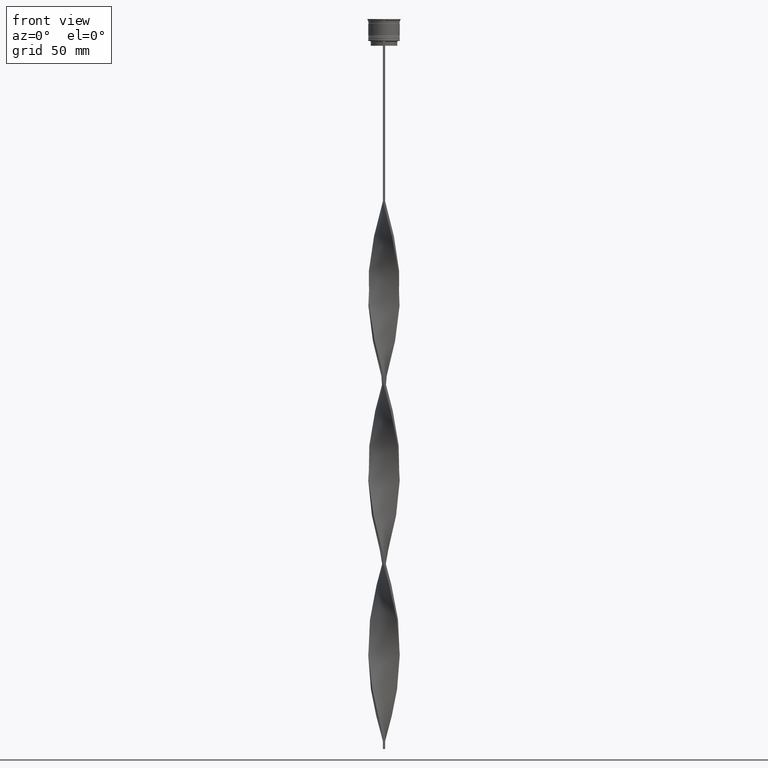
[diagram: clean part render]
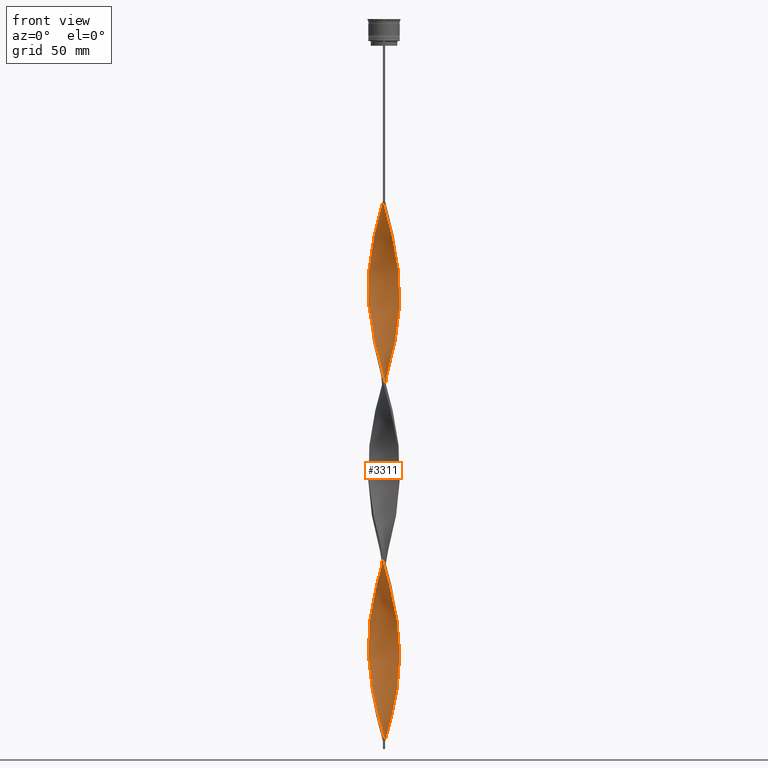
[diagram: same view with one face highlighted and labeled with its STEP entity id]
A machine part, front view. The second image highlights one B-rep face of the part: STEP entity #3311.
In plain terms, the highlighted face is a freeform B-spline surface patch.
Its self-contained STEP definition (entity closure, byte-faithful):
#7 = EDGE_CURVE ( 'NONE', #2675, #1084, #235, .T. ) ;
#37 = CARTESIAN_POINT ( 'NONE',  ( -2.865814812699130076, 9.636597638877821836, -123.7954545454545467 ) ) ;
#56 = CARTESIAN_POINT ( 'NONE',  ( 1.465214115587971433, 9.946358941330908365, -227.7348484848484702 ) ) ;
#58 = CARTESIAN_POINT ( 'NONE',  ( 0.7499999999999985567, -9.999999999999998224, -230.3333333333333428 ) ) ;
#76 = CARTESIAN_POINT ( 'NONE',  ( -4.775468024932592925, 8.818015941403515967, -251.1212121212121247 ) ) ;
#79 = CARTESIAN_POINT ( 'NONE',  ( 2.799061189350518397, 9.656198271192604210, -331.6742424242423795 ) ) ;
#98 = CARTESIAN_POINT ( 'NONE',  ( -3.471926133502978296, 9.407881213296603207, -245.9242424242424363 ) ) ;
#100 = CARTESIAN_POINT ( 'NONE',  ( -4.775468024932591149, -8.818015941403507085, -209.5454545454545610 ) ) ;
#120 = CARTESIAN_POINT ( 'NONE',  ( 4.836374126534754403, 8.784758693793774498, -214.7424242424242209 ) ) ;
#122 = CARTESIAN_POINT ( 'NONE',  ( 9.999999999999998224, 0.7499999999999980016, -287.5000000000000568 ) ) ;
#127 = CARTESIAN_POINT ( 'NONE',  ( 9.656198271192611315, 2.799061189350516621, -186.1590909090908781 ) ) ;
#130 = CARTESIAN_POINT ( 'NONE',  ( -4.775468024932591149, -8.818015941403507085, -209.5454545454545610 ) ) ;
#140 = CARTESIAN_POINT ( 'NONE',  ( -0.7499999999999998890, -10.00000000000000533, -344.6666666666666856 ) ) ;
#143 = CARTESIAN_POINT ( 'NONE',  ( -7.066350193083618336, -7.115419520218543070, -199.1515151515151558 ) ) ;
#151 = CARTESIAN_POINT ( 'NONE',  ( 6.610024179840430669, 7.575255041002670886, -206.9469696969697168 ) ) ;
#156 = CARTESIAN_POINT ( 'NONE',  ( 3.536945298625171041, 9.383630318513906943, -448.6060606060606233 ) ) ;
#164 = CARTESIAN_POINT ( 'NONE',  ( 9.159564155400593322, 4.144791077655439082, -420.0227272727271952 ) ) ;
#166 = CARTESIAN_POINT ( 'NONE',  ( -8.476467727406427954, 5.406144972209743216, -378.4469696969697452 ) ) ;
#173 = CARTESIAN_POINT ( 'NONE',  ( 9.383630318513906943, -3.536945298625171930, -162.7727272727272805 ) ) ;
#178 = CARTESIAN_POINT ( 'NONE',  ( -10.05364105866909341, -0.03478588441202934423, -170.5681818181818414 ) ) ;
#187 = CARTESIAN_POINT ( 'NONE',  ( -4.836374126534756179, -8.784758693793772721, -329.0757575757575637 ) ) ;
#189 = CARTESIAN_POINT ( 'NONE',  ( -6.610024179840422676, 7.575255041002665557, -368.0530303030302548 ) ) ;
#201 = CARTESIAN_POINT ( 'NONE',  ( -9.806229153776044427, 2.097705838203424378, -391.4393939393939945 ) ) ;
#207 = CARTESIAN_POINT ( 'NONE',  ( 7.575255041002671774, -6.610024179840428005, -378.4469696969697452 ) ) ;
#209 = CARTESIAN_POINT ( 'NONE',  ( -8.818015941403507085, 4.775468024932590261, -381.0454545454545610 ) ) ;
#225 = CARTESIAN_POINT ( 'NONE',  ( 8.048641294001544821, -5.981795158687156722, -261.5151515151515582 ) ) ;
#231 = CARTESIAN_POINT ( 'NONE',  ( 9.956260036359488197, 1.396350487056335021, -409.6287878787878185 ) ) ;
#235 = B_SPLINE_CURVE_WITH_KNOTS ( 'NONE', 3,
 ( #3055, #4425, #4400, #1333 ),
 .UNSPECIFIED., .F., .F.,
 ( 4, 4 ),
 ( 0.000000000000000000, 1.000000000000000000 ),
 .UNSPECIFIED. ) ;
#239 = CARTESIAN_POINT ( 'NONE',  ( 6.557445345164574668, -7.620814860596668794, -373.2499999999999432 ) ) ;
#245 = CARTESIAN_POINT ( 'NONE',  ( -9.656198271192604210, 2.799061189350515289, -388.8409090909090651 ) ) ;
#254 = CARTESIAN_POINT ( 'NONE',  ( 0.7499999999999985567, -9.999999999999998224, -459.0000000000000000 ) ) ;
#259 = CARTESIAN_POINT ( 'NONE',  ( -1.396350487056332801, -9.956260036359481091, -222.5378787878787250 ) ) ;
#260 = CARTESIAN_POINT ( 'NONE',  ( 3.471926133502977407, -9.407881213296604983, -360.2575757575757507 ) ) ;
#265 = CARTESIAN_POINT ( 'NONE',  ( 9.791478290104363325, 2.165514464143547535, -292.6969696969697452 ) ) ;
#279 = CARTESIAN_POINT ( 'NONE',  ( -9.956260036359481091, 1.396350487056332357, -165.3712121212120962 ) ) ;
#280 = CARTESIAN_POINT ( 'NONE',  ( 0.03478588441203066262, 10.05364105866910052, -232.9318181818181870 ) ) ;
#289 = CARTESIAN_POINT ( 'NONE',  ( 6.037348324179360404, -8.007054715220112584, -251.1212121212121247 ) ) ;
#305 = CARTESIAN_POINT ( 'NONE',  ( -8.438854389437560499, 5.464672468518301685, -269.3106060606060623 ) ) ;
#328 = CARTESIAN_POINT ( 'NONE',  ( -2.799061189350517509, 9.656198271192611315, -243.3257575757575637 ) ) ;
#338 = CARTESIAN_POINT ( 'NONE',  ( -8.438854389437555170, -5.464672468518296355, -420.0227272727271952 ) ) ;
#351 = CARTESIAN_POINT ( 'NONE',  ( 9.806229153776049756, 2.097705838203425266, -412.2272727272727479 ) ) ;
#378 = CARTESIAN_POINT ( 'NONE',  ( -0.7499999999999997780, 9.999999999999998224, -116.0000000000000000 ) ) ;
#385 = CARTESIAN_POINT ( 'NONE',  ( -1.396350487056332801, -9.956260036359481091, -451.2045454545454959 ) ) ;
#395 = CARTESIAN_POINT ( 'NONE',  ( -9.383630318513906943, 3.536945298625171930, -277.1060606060606233 ) ) ;
#397 = CARTESIAN_POINT ( 'NONE',  ( -6.557445345164569339, -7.620814860596661688, -201.7499999999999716 ) ) ;
#413 = CARTESIAN_POINT ( 'NONE',  ( 2.799061189350517065, -9.656198271192611315, -128.9924242424242209 ) ) ;
#415 = CARTESIAN_POINT ( 'NONE',  ( -7.575255041002665557, -6.610024179840424452, -196.5530303030303116 ) ) ;
#435 = CARTESIAN_POINT ( 'NONE',  ( 8.476467727406435060, 5.406144972209746768, -196.5530303030303116 ) ) ;
#438 = CARTESIAN_POINT ( 'NONE',  ( -8.784758693793767392, -4.836374126534751738, -188.7575757575757507 ) ) ;
#453 = CARTESIAN_POINT ( 'NONE',  ( 9.130662998149981391, -4.208075784551211562, -160.1742424242424363 ) ) ;
#455 = CARTESIAN_POINT ( 'NONE',  ( 9.956260036359481091, -1.396350487056338130, -279.7045454545454390 ) ) ;
#461 = CARTESIAN_POINT ( 'NONE',  ( 10.00495054751429613, 0.6807823013221513397, -178.3636363636364024 ) ) ;
#466 = CARTESIAN_POINT ( 'NONE',  ( -10.00495054751428725, 0.6807823013221516728, -167.9696969696969973 ) ) ;
#478 = CARTESIAN_POINT ( 'NONE',  ( -9.636597638877828942, 2.865814812699136738, -279.7045454545454390 ) ) ;
#480 = CARTESIAN_POINT ( 'NONE',  ( 4.775468024932587596, 8.818015941403508862, -323.8787878787878753 ) ) ;
#485 = CARTESIAN_POINT ( 'NONE',  ( 9.946358941330910142, -1.465214115587970545, -170.5681818181818414 ) ) ;
#488 = CARTESIAN_POINT ( 'NONE',  ( -0.7499999999999997780, 9.999999999999998224, -116.0000000000000000 ) ) ;
#498 = CARTESIAN_POINT ( 'NONE',  ( 6.610024179840429781, 7.575255041002669998, -435.6136363636363171 ) ) ;
#502 = CARTESIAN_POINT ( 'NONE',  ( -9.999999999999998224, -0.7499999999999991118, -401.8333333333333144 ) ) ;
#509 = CARTESIAN_POINT ( 'NONE',  ( 9.130662998149983167, -4.208075784551211562, -160.1742424242424647 ) ) ;
#514 = CARTESIAN_POINT ( 'NONE',  ( 7.115419520218548399, 7.066350193083621889, -433.0151515151515014 ) ) ;
#522 = CARTESIAN_POINT ( 'NONE',  ( 6.557445345164574668, -7.620814860596667906, -373.2499999999999432 ) ) ;
#524 = CARTESIAN_POINT ( 'NONE',  ( -4.208075784551208010, 9.130662998149976062, -357.6590909090909349 ) ) ;
#537 = CARTESIAN_POINT ( 'NONE',  ( -9.407881213296597878, 3.471926133502974743, -386.2424242424242493 ) ) ;
#544 = CARTESIAN_POINT ( 'NONE',  ( 4.775468024932592925, -8.818015941403515967, -365.4545454545454959 ) ) ;
#546 = CARTESIAN_POINT ( 'NONE',  ( -0.7499999999999997780, 9.999999999999998224, -344.6666666666666856 ) ) ;
#559 = CARTESIAN_POINT ( 'NONE',  ( -10.05364105866909341, -0.03478588441202934423, -399.2348484848484418 ) ) ;
#564 = CARTESIAN_POINT ( 'NONE',  ( 10.00000000000000533, -0.7500000000000005551, -401.8333333333333144 ) ) ;
#572 = CARTESIAN_POINT ( 'NONE',  ( 0.6807823013221530051, -10.00495054751429436, -349.8636363636363740 ) ) ;
#583 = CARTESIAN_POINT ( 'NONE',  ( 3.471926133502974743, 9.407881213296597878, -329.0757575757575637 ) ) ;
#589 = CARTESIAN_POINT ( 'NONE',  ( -2.865814812699137182, -9.636597638877828942, -336.8712121212120678 ) ) ;
#591 = CARTESIAN_POINT ( 'NONE',  ( -1.396350487056333023, -9.956260036359481091, -451.2045454545454959 ) ) ;
#595 = CARTESIAN_POINT ( 'NONE',  ( -2.799061189350513512, -9.656198271192605986, -217.3409090909090651 ) ) ;
#596 = CARTESIAN_POINT ( 'NONE',  ( 9.130662998149983167, -4.208075784551211562, -388.8409090909090651 ) ) ;
#602 = CARTESIAN_POINT ( 'NONE',  ( 2.097705838203424378, 9.806229153776044427, -334.2727272727272521 ) ) ;
#619 = CARTESIAN_POINT ( 'NONE',  ( -9.407881213296597878, 3.471926133502974743, -157.5757575757575921 ) ) ;
#620 = CARTESIAN_POINT ( 'NONE',  ( -6.610024179840431557, -7.575255041002669110, -321.2803030303030596 ) ) ;
#626 = CARTESIAN_POINT ( 'NONE',  ( 10.00495054751428903, -0.6807823013221527830, -282.3030303030303116 ) ) ;
#640 = CARTESIAN_POINT ( 'NONE',  ( -1.465214115587969879, 9.946358941330901260, -118.5984848484848442 ) ) ;
#641 = CARTESIAN_POINT ( 'NONE',  ( -1.396350487056331913, 9.956260036359488197, -238.1287878787878469 ) ) ;
#658 = LINE ( 'NONE', #2380, #1511 ) ;
#666 = CARTESIAN_POINT ( 'NONE',  ( -0.7499999999999997780, -10.00000000000000533, -344.6666666666666856 ) ) ;
#680 = DIRECTION ( 'NONE',  ( 0.000000000000000000, 1.000000000000000000, 0.000000000000000000 ) ) ;
#688 = CARTESIAN_POINT ( 'NONE',  ( 9.159564155400593322, 4.144791077655439970, -420.0227272727271952 ) ) ;
#716 = CARTESIAN_POINT ( 'NONE',  ( -9.383630318513899837, -3.536945298625169265, -412.2272727272727479 ) ) ;
#731 = CARTESIAN_POINT ( 'NONE',  ( 9.946358941330908365, -1.465214115587970767, -170.5681818181818414 ) ) ;
#748 = CARTESIAN_POINT ( 'NONE',  ( -10.05364105866910052, 0.03478588441202685316, -290.0984848484848726 ) ) ;
#751 = CARTESIAN_POINT ( 'NONE',  ( 4.836374126534753515, -8.784758693793767392, -245.9242424242424363 ) ) ;
#771 = CARTESIAN_POINT ( 'NONE',  ( -0.6807823013221503405, 10.00495054751429613, -235.5303030303030312 ) ) ;
#773 = CARTESIAN_POINT ( 'NONE',  ( 2.865814812699127856, -9.636597638877821836, -238.1287878787878469 ) ) ;
#790 = CARTESIAN_POINT ( 'NONE',  ( 9.806229153776049756, 2.097705838203425266, -183.5606060606060908 ) ) ;
#793 = CARTESIAN_POINT ( 'NONE',  ( 4.208075784551208898, -9.130662998149976062, -243.3257575757575637 ) ) ;
#801 = CARTESIAN_POINT ( 'NONE',  ( 9.791478290104368654, -2.165514464143551088, -167.9696969696969973 ) ) ;
#806 = CARTESIAN_POINT ( 'NONE',  ( 0.7500000000000009992, 10.00000000000000533, -459.0000000000000000 ) ) ;
#814 = CARTESIAN_POINT ( 'NONE',  ( -2.799061189350517509, 9.656198271192611315, -243.3257575757575637 ) ) ;
#816 = CARTESIAN_POINT ( 'NONE',  ( -5.981795158687156722, -8.048641294001544821, -204.3484848484848726 ) ) ;
#819 = ORIENTED_EDGE ( 'NONE', *, *, #2520, .T. ) ;
#822 = CARTESIAN_POINT ( 'NONE',  ( 8.476467727406435060, 5.406144972209746768, -196.5530303030303116 ) ) ;
#828 = CARTESIAN_POINT ( 'NONE',  ( -2.165514464143550200, 9.791478290104361548, -121.1969696969697026 ) ) ;
#837 = CARTESIAN_POINT ( 'NONE',  ( -1.465214115587968102, -9.946358941330908365, -342.0681818181818130 ) ) ;
#839 = CARTESIAN_POINT ( 'NONE',  ( -9.791478290104363325, -2.165514464143549311, -178.3636363636364024 ) ) ;
#844 = CARTESIAN_POINT ( 'NONE',  ( 7.066350193083622777, -7.115419520218548399, -147.1818181818181870 ) ) ;
#848 = CARTESIAN_POINT ( 'NONE',  ( 4.208075784551209786, -9.130662998149976062, -243.3257575757575637 ) ) ;
#860 = CARTESIAN_POINT ( 'NONE',  ( -9.159564155400593322, -4.144791077655438194, -305.6893939393939945 ) ) ;
#863 = CARTESIAN_POINT ( 'NONE',  ( -6.037348324179360404, 8.007054715220112584, -365.4545454545454959 ) ) ;
#875 = CARTESIAN_POINT ( 'NONE',  ( -8.784758693793767392, -4.836374126534751738, -188.7575757575757507 ) ) ;
#877 = CARTESIAN_POINT ( 'NONE',  ( -6.037348324179360404, 8.007054715220112584, -365.4545454545454959 ) ) ;
#883 = CARTESIAN_POINT ( 'NONE',  ( -8.048641294001550150, -5.981795158687162051, -313.4848484848484986 ) ) ;
#884 = ORIENTED_EDGE ( 'NONE', *, *, #3860, .F. ) ;
#885 = CARTESIAN_POINT ( 'NONE',  ( -8.007054715220110808, -6.037348324179360404, -422.6212121212121247 ) ) ;
#889 = ORIENTED_EDGE ( 'NONE', *, *, #2276, .T. ) ;
#900 = CARTESIAN_POINT ( 'NONE',  ( 7.620814860596662577, -6.557445345164570227, -258.9166666666666288 ) ) ;
#906 = CARTESIAN_POINT ( 'NONE',  ( -9.956260036359488197, -1.396350487056335687, -295.2954545454545041 ) ) ;
#908 = CARTESIAN_POINT ( 'NONE',  ( -9.791478290104363325, -2.165514464143549311, -407.0303030303030027 ) ) ;
#914 = CARTESIAN_POINT ( 'NONE',  ( -4.208075784551215115, -9.130662998149981391, -331.6742424242423795 ) ) ;
#920 = CARTESIAN_POINT ( 'NONE',  ( 7.575255041002667333, 6.610024179840423564, -310.8863636363635692 ) ) ;
#925 = CARTESIAN_POINT ( 'NONE',  ( 9.636597638877828942, -2.865814812699130965, -394.0378787878787534 ) ) ;
#927 = CARTESIAN_POINT ( 'NONE',  ( 0.6807823013221536712, 10.00495054751428903, -339.4696969696969973 ) ) ;
#933 = CARTESIAN_POINT ( 'NONE',  ( 8.438854389437562276, -5.464672468518299908, -383.6439393939393767 ) ) ;
#944 = CARTESIAN_POINT ( 'NONE',  ( -9.791478290104363325, -2.165514464143549311, -407.0303030303030027 ) ) ;
#953 = CARTESIAN_POINT ( 'NONE',  ( -3.471926133502973855, -9.407881213296597878, -443.4090909090909349 ) ) ;
#957 = CARTESIAN_POINT ( 'NONE',  ( 8.048641294001550150, 5.981795158687160274, -427.8181818181818130 ) ) ;
#958 = CARTESIAN_POINT ( 'NONE',  ( -2.865814812699137182, -9.636597638877828942, -336.8712121212120110 ) ) ;
#966 = CARTESIAN_POINT ( 'NONE',  ( -4.836374126534752627, 8.784758693793767392, -360.2575757575757507 ) ) ;
#979 = CARTESIAN_POINT ( 'NONE',  ( -0.03478588441202913606, -10.05364105866910052, -118.5984848484848442 ) ) ;
#982 = CARTESIAN_POINT ( 'NONE',  ( 5.981795158687160274, -8.048641294001550150, -370.6515151515151842 ) ) ;
#1002 = CARTESIAN_POINT ( 'NONE',  ( -8.818015941403507085, 4.775468024932590261, -152.3787878787879038 ) ) ;
#1003 = CARTESIAN_POINT ( 'NONE',  ( -1.465214115587968102, -9.946358941330910142, -342.0681818181818699 ) ) ;
#1027 = CARTESIAN_POINT ( 'NONE',  ( 10.00495054751429613, 0.6807823013221513397, -407.0303030303030027 ) ) ;
#1034 = CARTESIAN_POINT ( 'NONE',  ( -8.784758693793767392, -4.836374126534751738, -417.4242424242424363 ) ) ;
#1056 = CARTESIAN_POINT ( 'NONE',  ( -5.981795158687156722, -8.048641294001544821, -433.0151515151515014 ) ) ;
#1066 = CARTESIAN_POINT ( 'NONE',  ( 8.818015941403514191, 4.775468024932592925, -193.9545454545454675 ) ) ;
#1078 = CARTESIAN_POINT ( 'NONE',  ( -5.406144972209744104, -8.476467727406427954, -435.6136363636363171 ) ) ;
#1084 = VERTEX_POINT ( 'NONE', #1901 ) ;
#1091 = CARTESIAN_POINT ( 'NONE',  ( -9.946358941330908365, 1.465214115587967436, -284.9015151515151842 ) ) ;
#1093 = CARTESIAN_POINT ( 'NONE',  ( 8.007054715220116137, 6.037348324179355963, -308.2878787878788103 ) ) ;
#1111 = CARTESIAN_POINT ( 'NONE',  ( 2.097705838203425266, -9.806229153776049756, -126.3939393939393909 ) ) ;
#1113 = CARTESIAN_POINT ( 'NONE',  ( -0.6807823013221521169, -10.00495054751428725, -225.1363636363636260 ) ) ;
#1132 = CARTESIAN_POINT ( 'NONE',  ( 5.981795158687160274, -8.048641294001550150, -141.9848484848484986 ) ) ;
#1134 = CARTESIAN_POINT ( 'NONE',  ( 1.465214115587968324, -9.946358941330901260, -232.9318181818181870 ) ) ;
#1138 = CARTESIAN_POINT ( 'NONE',  ( 8.438854389437562276, -5.464672468518299908, -154.9772727272727195 ) ) ;
#1140 = CARTESIAN_POINT ( 'NONE',  ( -5.406144972209744104, -8.476467727406427954, -206.9469696969697168 ) ) ;
#1150 = CARTESIAN_POINT ( 'NONE',  ( 6.557445345164574668, -7.620814860596667906, -144.5833333333333428 ) ) ;
#1154 = CARTESIAN_POINT ( 'NONE',  ( -9.999999999999998224, -0.7499999999999991118, -173.1666666666666856 ) ) ;
#1166 = CARTESIAN_POINT ( 'NONE',  ( 0.03478588441202860176, -10.05364105866909341, -227.7348484848484702 ) ) ;
#1173 = CARTESIAN_POINT ( 'NONE',  ( 5.406144972209745880, -8.476467727406435060, -368.0530303030302548 ) ) ;
#1175 = CARTESIAN_POINT ( 'NONE',  ( 6.037348324179360404, -8.007054715220112584, -251.1212121212121247 ) ) ;
#1187 = CARTESIAN_POINT ( 'NONE',  ( 2.865814812699127856, -9.636597638877821836, -238.1287878787878469 ) ) ;
#1196 = CARTESIAN_POINT ( 'NONE',  ( 3.536945298625171041, 9.383630318513906943, -448.6060606060606233 ) ) ;
#1203 = CARTESIAN_POINT ( 'NONE',  ( 5.406144972209745880, -8.476467727406435060, -139.3863636363635976 ) ) ;
#1208 = CARTESIAN_POINT ( 'NONE',  ( -6.037348324179360404, 8.007054715220112584, -136.7878787878787818 ) ) ;
#1218 = CARTESIAN_POINT ( 'NONE',  ( 7.066350193083622777, -7.115419520218548399, -375.8484848484848726 ) ) ;
#1221 = CARTESIAN_POINT ( 'NONE',  ( -4.836374126534752627, 8.784758693793767392, -360.2575757575757507 ) ) ;
#1228 = CARTESIAN_POINT ( 'NONE',  ( 4.775468024932592925, -8.818015941403515967, -136.7878787878787818 ) ) ;
#1234 = CARTESIAN_POINT ( 'NONE',  ( 2.799061189350518841, 9.656198271192604210, -331.6742424242423795 ) ) ;
#1239 = CARTESIAN_POINT ( 'NONE',  ( -9.656198271192611315, -2.799061189350517065, -300.4924242424242493 ) ) ;
#1242 = CARTESIAN_POINT ( 'NONE',  ( -8.438854389437555170, -5.464672468518296355, -420.0227272727271952 ) ) ;
#1247 = CARTESIAN_POINT ( 'NONE',  ( -8.476467727406435060, -5.406144972209745880, -310.8863636363635692 ) ) ;
#1256 = CARTESIAN_POINT ( 'NONE',  ( 9.130662998149976062, 4.208075784551208898, -300.4924242424241925 ) ) ;
#1262 = CARTESIAN_POINT ( 'NONE',  ( 2.097705838203425266, -9.806229153776049756, -355.0606060606060623 ) ) ;
#1264 = CARTESIAN_POINT ( 'NONE',  ( -7.066350193083618336, -7.115419520218543070, -427.8181818181818130 ) ) ;
#1271 = CARTESIAN_POINT ( 'NONE',  ( -2.097705838203422601, 9.806229153776051533, -240.7272727272727479 ) ) ;
#1278 = CARTESIAN_POINT ( 'NONE',  ( 1.396350487056338796, 9.956260036359481091, -336.8712121212120110 ) ) ;
#1285 = CARTESIAN_POINT ( 'NONE',  ( -8.784758693793767392, -4.836374126534751738, -417.4242424242424363 ) ) ;
#1292 = CARTESIAN_POINT ( 'NONE',  ( -5.981795158687156722, -8.048641294001544821, -204.3484848484848726 ) ) ;
#1293 = CARTESIAN_POINT ( 'NONE',  ( -7.620814860596669682, -6.557445345164572004, -316.0833333333332575 ) ) ;
#1303 = CARTESIAN_POINT ( 'NONE',  ( 7.115419520218543070, -7.066350193083619224, -256.3181818181818130 ) ) ;
#1316 = CARTESIAN_POINT ( 'NONE',  ( -6.557445345164573780, 7.620814860596669682, -258.9166666666666288 ) ) ;
#1326 = CARTESIAN_POINT ( 'NONE',  ( -6.557445345164569339, -7.620814860596662577, -430.4166666666666856 ) ) ;
#1333 = CARTESIAN_POINT ( 'NONE',  ( 0.7499999999999985567, -9.999999999999998224, -459.0000000000000000 ) ) ;
#1339 = CARTESIAN_POINT ( 'NONE',  ( -7.115419520218543070, 7.066350193083617448, -141.9848484848484986 ) ) ;
#1340 = CARTESIAN_POINT ( 'NONE',  ( -4.775468024932592925, 8.818015941403515967, -251.1212121212121247 ) ) ;
#1347 = CARTESIAN_POINT ( 'NONE',  ( -4.775468024932591149, -8.818015941403507085, -438.2121212121212466 ) ) ;
#1361 = CARTESIAN_POINT ( 'NONE',  ( -9.407881213296597878, 3.471926133502974743, -157.5757575757575921 ) ) ;
#1362 = CARTESIAN_POINT ( 'NONE',  ( 10.00000000000000533, -0.7500000000000004441, -401.8333333333333144 ) ) ;
#1393 = CARTESIAN_POINT ( 'NONE',  ( -2.097705838203423490, -9.806229153776044427, -448.6060606060606233 ) ) ;
#1404 = CARTESIAN_POINT ( 'NONE',  ( 5.406144972209745880, -8.476467727406435060, -139.3863636363636260 ) ) ;
#1426 = CARTESIAN_POINT ( 'NONE',  ( 7.066350193083622777, -7.115419520218548399, -147.1818181818181870 ) ) ;
#1428 = CARTESIAN_POINT ( 'NONE',  ( 9.383630318513901614, 3.536945298625165712, -297.8939393939394336 ) ) ;
#1448 = CARTESIAN_POINT ( 'NONE',  ( -7.066350193083621889, 7.115419520218548399, -261.5151515151515582 ) ) ;
#1450 = CARTESIAN_POINT ( 'NONE',  ( 8.476467727406427954, -5.406144972209744104, -264.1136363636363171 ) ) ;
#1468 = CARTESIAN_POINT ( 'NONE',  ( 8.784758693793772721, -4.836374126534756179, -157.5757575757575921 ) ) ;
#1470 = CARTESIAN_POINT ( 'NONE',  ( 8.048641294001544821, -5.981795158687156722, -261.5151515151515582 ) ) ;
#1488 = CARTESIAN_POINT ( 'NONE',  ( -7.575255041002669998, 6.610024179840429781, -264.1136363636363171 ) ) ;
#1491 = CARTESIAN_POINT ( 'NONE',  ( 9.791478290104363325, 2.165514464143547535, -292.6969696969697452 ) ) ;
#1496 = CARTESIAN_POINT ( 'NONE',  ( 9.407881213296604983, 3.471926133502976519, -188.7575757575757507 ) ) ;
#1498 = CARTESIAN_POINT ( 'NONE',  ( -4.144791077655438194, -9.159564155400586216, -212.1439393939393767 ) ) ;
#1509 = CARTESIAN_POINT ( 'NONE',  ( 9.656198271192611315, 2.799061189350516621, -414.8257575757575637 ) ) ;
#1511 = VECTOR ( 'NONE', #680, 1000.000000000000000 ) ;
#1513 = CARTESIAN_POINT ( 'NONE',  ( 9.407881213296597878, -3.471926133502974743, -271.9090909090909349 ) ) ;
#1519 = CARTESIAN_POINT ( 'NONE',  ( 6.037348324179366621, 8.007054715220117913, -209.5454545454545610 ) ) ;
#1524 = CARTESIAN_POINT ( 'NONE',  ( -8.818015941403507085, 4.775468024932590261, -152.3787878787879038 ) ) ;
#1532 = CARTESIAN_POINT ( 'NONE',  ( 9.383630318513906943, -3.536945298625172374, -391.4393939393939945 ) ) ;
#1534 = CARTESIAN_POINT ( 'NONE',  ( -9.130662998149976062, -4.208075784551207121, -414.8257575757575637 ) ) ;
#1543 = CARTESIAN_POINT ( 'NONE',  ( 2.865814812699131853, 9.636597638877828942, -222.5378787878787250 ) ) ;
#1550 = CARTESIAN_POINT ( 'NONE',  ( -9.383630318513899837, -3.536945298625169265, -183.5606060606060908 ) ) ;
#1558 = CARTESIAN_POINT ( 'NONE',  ( 0.6807823013221528941, -10.00495054751429436, -349.8636363636363740 ) ) ;
#1573 = CARTESIAN_POINT ( 'NONE',  ( -9.956260036359481091, 1.396350487056332357, -394.0378787878788103 ) ) ;
#1579 = CARTESIAN_POINT ( 'NONE',  ( 9.130662998149981391, -4.208075784551211562, -388.8409090909090651 ) ) ;
#1589 = CARTESIAN_POINT ( 'NONE',  ( 7.575255041002672662, -6.610024179840428893, -149.7803030303030596 ) ) ;
#1596 = CARTESIAN_POINT ( 'NONE',  ( 9.946358941330903036, 1.465214115587971877, -290.0984848484849294 ) ) ;
#1603 = CARTESIAN_POINT ( 'NONE',  ( 9.806229153776049756, 2.097705838203425266, -412.2272727272727479 ) ) ;
#1605 = CARTESIAN_POINT ( 'NONE',  ( -6.557445345164569339, -7.620814860596661688, -430.4166666666666856 ) ) ;
#1610 = CARTESIAN_POINT ( 'NONE',  ( -9.383630318513906943, 3.536945298625171930, -277.1060606060606233 ) ) ;
#1618 = CARTESIAN_POINT ( 'NONE',  ( 10.05364105866909341, 0.03478588441203249448, -284.9015151515151842 ) ) ;
#1626 = CARTESIAN_POINT ( 'NONE',  ( -9.159564155400587993, 4.144791077655436418, -383.6439393939393767 ) ) ;
#1631 = CARTESIAN_POINT ( 'NONE',  ( -0.6807823013221521169, -10.00495054751428725, -225.1363636363636260 ) ) ;
#1632 = CARTESIAN_POINT ( 'NONE',  ( -9.946358941330910142, 1.465214115587967214, -284.9015151515151842 ) ) ;
#1638 = CARTESIAN_POINT ( 'NONE',  ( -0.03478588441203184223, 10.05364105866909341, -342.0681818181818699 ) ) ;
#1655 = CARTESIAN_POINT ( 'NONE',  ( -4.144791077655439970, 9.159564155400593322, -248.5227272727272521 ) ) ;
#1662 = CARTESIAN_POINT ( 'NONE',  ( -4.208075784551208898, 9.130662998149976062, -357.6590909090909918 ) ) ;
#1674 = CARTESIAN_POINT ( 'NONE',  ( -5.464672468518295467, 8.438854389437556947, -134.1893939393939377 ) ) ;
#1675 = CARTESIAN_POINT ( 'NONE',  ( -9.806229153776051533, -2.097705838203422157, -297.8939393939394336 ) ) ;
#1698 = CARTESIAN_POINT ( 'NONE',  ( -9.656198271192604210, 2.799061189350515289, -160.1742424242424363 ) ) ;
#1699 = CARTESIAN_POINT ( 'NONE',  ( -10.00495054751429613, -0.6807823013221501185, -292.6969696969697452 ) ) ;
#1759 = CARTESIAN_POINT ( 'NONE',  ( -1.396350487056331913, 9.956260036359488197, -238.1287878787878469 ) ) ;
#1761 = CARTESIAN_POINT ( 'NONE',  ( 7.620814860596661688, -6.557445345164570227, -258.9166666666666288 ) ) ;
#1776 = CARTESIAN_POINT ( 'NONE',  ( 7.115419520218548399, 7.066350193083621889, -204.3484848484848726 ) ) ;
#1778 = CARTESIAN_POINT ( 'NONE',  ( -9.946358941330901260, -1.465214115587968990, -175.7651515151515014 ) ) ;
#1797 = CARTESIAN_POINT ( 'NONE',  ( 9.407881213296604983, 3.471926133502976075, -188.7575757575757507 ) ) ;
#1799 = CARTESIAN_POINT ( 'NONE',  ( 7.115419520218543070, -7.066350193083619224, -256.3181818181818130 ) ) ;
#1816 = CARTESIAN_POINT ( 'NONE',  ( 9.656198271192611315, 2.799061189350516621, -186.1590909090908781 ) ) ;
#1818 = CARTESIAN_POINT ( 'NONE',  ( -8.007054715220110808, -6.037348324179360404, -193.9545454545454675 ) ) ;
#1827 = CARTESIAN_POINT ( 'NONE',  ( 9.956260036359488197, 1.396350487056335243, -180.9621212121212182 ) ) ;
#1830 = CARTESIAN_POINT ( 'NONE',  ( -9.999999999999998224, -0.7499999999999991118, -173.1666666666666856 ) ) ;
#1839 = CARTESIAN_POINT ( 'NONE',  ( 0.03478588441203076670, 10.05364105866910052, -232.9318181818181870 ) ) ;
#1841 = CARTESIAN_POINT ( 'NONE',  ( -9.130662998149976062, -4.208075784551207121, -186.1590909090908781 ) ) ;
#1846 = CARTESIAN_POINT ( 'NONE',  ( 7.620814860596668794, 6.557445345164573780, -201.7500000000000000 ) ) ;
#1851 = CARTESIAN_POINT ( 'NONE',  ( -8.048641294001546598, 5.981795158687156722, -147.1818181818181870 ) ) ;
#1864 = CARTESIAN_POINT ( 'NONE',  ( 6.037348324179366621, 8.007054715220117913, -438.2121212121212466 ) ) ;
#1868 = CARTESIAN_POINT ( 'NONE',  ( -9.806229153776044427, 2.097705838203424378, -391.4393939393939945 ) ) ;
#1874 = CARTESIAN_POINT ( 'NONE',  ( 4.208075784551210674, 9.130662998149984944, -217.3409090909090651 ) ) ;
#1879 = CARTESIAN_POINT ( 'NONE',  ( -1.465214115587969879, 9.946358941330903036, -118.5984848484848442 ) ) ;
#1885 = CARTESIAN_POINT ( 'NONE',  ( -7.115419520218546623, -7.066350193083624553, -318.6818181818181870 ) ) ;
#1886 = VERTEX_POINT ( 'NONE', #3239 ) ;
#1901 = CARTESIAN_POINT ( 'NONE',  ( 0.7499999999999985567, -9.999999999999998224, -459.0000000000000000 ) ) ;
#1904 = CARTESIAN_POINT ( 'NONE',  ( 9.956260036359481091, -1.396350487056338352, -279.7045454545453822 ) ) ;
#1909 = CARTESIAN_POINT ( 'NONE',  ( -0.03478588441202913606, -10.05364105866910052, -347.2651515151514445 ) ) ;
#1916 = CARTESIAN_POINT ( 'NONE',  ( 2.097705838203425266, -9.806229153776049756, -126.3939393939393909 ) ) ;
#1924 = CARTESIAN_POINT ( 'NONE',  ( 4.144791077655439970, 9.159564155400586216, -326.4772727272727479 ) ) ;
#1931 = CARTESIAN_POINT ( 'NONE',  ( -4.208075784551214227, -9.130662998149981391, -331.6742424242423795 ) ) ;
#1940 = CARTESIAN_POINT ( 'NONE',  ( 2.799061189350517065, -9.656198271192611315, -357.6590909090909918 ) ) ;
#1947 = CARTESIAN_POINT ( 'NONE',  ( -8.818015941403507085, 4.775468024932590261, -381.0454545454545610 ) ) ;
#1953 = CARTESIAN_POINT ( 'NONE',  ( -8.818015941403515967, -4.775468024932588484, -308.2878787878788103 ) ) ;
#1955 = CARTESIAN_POINT ( 'NONE',  ( 0.03478588441202859483, -10.05364105866909341, -456.4015151515151274 ) ) ;
#1959 = CARTESIAN_POINT ( 'NONE',  ( -2.097705838203423490, -9.806229153776044427, -219.9393939393939377 ) ) ;
#1960 = CARTESIAN_POINT ( 'NONE',  ( 9.383630318513906943, -3.536945298625171930, -391.4393939393939945 ) ) ;
#1967 = CARTESIAN_POINT ( 'NONE',  ( -9.636597638877821836, -2.865814812699130520, -409.6287878787878185 ) ) ;
#1981 = CARTESIAN_POINT ( 'NONE',  ( -3.536945298625169265, 9.383630318513899837, -126.3939393939393909 ) ) ;
#1982 = CARTESIAN_POINT ( 'NONE',  ( 1.396350487056334799, -9.956260036359488197, -352.4621212121211329 ) ) ;
#1988 = CARTESIAN_POINT ( 'NONE',  ( -0.7499999999999997780, 9.999999999999998224, -344.6666666666666856 ) ) ;
#2003 = CARTESIAN_POINT ( 'NONE',  ( -2.165514464143550200, 9.791478290104361548, -121.1969696969697026 ) ) ;
#2004 = CARTESIAN_POINT ( 'NONE',  ( -8.818015941403515967, -4.775468024932588484, -308.2878787878788103 ) ) ;
#2013 = CARTESIAN_POINT ( 'NONE',  ( -9.130662998149976062, -4.208075784551208010, -414.8257575757575637 ) ) ;
#2026 = CARTESIAN_POINT ( 'NONE',  ( -9.159564155400587993, 4.144791077655436418, -154.9772727272727195 ) ) ;
#2027 = CARTESIAN_POINT ( 'NONE',  ( -9.407881213296606759, -3.471926133502973411, -303.0909090909091219 ) ) ;
#2032 =( BOUNDED_CURVE ( )  B_SPLINE_CURVE ( 2, ( #2674, #979, #2341, #3705, #1111, #413, #3209, #4177, #3168, #1404, #1132, #1150, #1426, #3124, #4156, #3189, #1468, #453, #2491, #2471, #3521, #731, #2513, #3882, #3856, #4199, #790, #1816, #1797, #2767, #1066, #435, #2116, #2429, #1776, #3796, #2095, #3840, #120, #2850, #3545, #3480, #3144, #56, #2451, #1839, #771, #1759, #3458, #814, #98, #2829, #76, #2159, #2786, #4135, #1448, #1488, #4218, #2809, #2136, #3499, #395, #478, #2180, #1091, #3816, #748, #3972, #906, #4313, #1239, #3903, #860, #1953, #4241, #883, #2559, #1885, #3632, #4289, #2245, #187, #1931, #3610, #589, #3950, #837, #140, #1909, #1558, #2269, #1262, #2626, #3993, #2203, #544, #1173, #4335, #522, #1218, #207, #2584, #2535, #2604, #1579, #1532, #925, #3273, #2942, #564, #2225, #3295, #231, #1603, #1509, #2898, #164, #2961, #2291, #2875, #3658, #3565, #498, #1864, #3589, #3232, #4268, #1196, #3253, #3926, #2920, #2712 ),
 .UNSPECIFIED., .F., .T. ) 
 B_SPLINE_CURVE_WITH_KNOTS ( ( 3, 2, 2, 2, 2, 2, 2, 2, 2, 2, 2, 2, 2, 2, 2, 2, 2, 2, 2, 2, 2, 2, 2, 2, 2, 2, 2, 2, 2, 2, 2, 2, 2, 2, 2, 2, 2, 2, 2, 2, 2, 2, 2, 2, 2, 2, 2, 2, 2, 2, 2, 2, 2, 2, 2, 2, 2, 2, 2, 2, 2, 2, 2, 2, 2, 2, 3 ),
 ( 0.000000000000000000, 0.01136363636363636222, 0.02272727272727272443, 0.03409090909090908839, 0.04545454545454544887, 0.05681818181818181629, 0.06818181818181817677, 0.07954545454545454419, 0.09090909090909089774, 0.1022727272727272790, 0.1136363636363636326, 0.1250000000000000000, 0.1363636363636363535, 0.1477272727272727348, 0.1590909090909090884, 0.1704545454545454419, 0.1818181818181817955, 0.1931818181818182045, 0.2045454545454545581, 0.2159090909090909116, 0.2272727272727272652, 0.2386363636363636465, 0.2500000000000000000, 0.2613636363636363535, 0.2727272727272727071, 0.2840909090909091161, 0.2954545454545454697, 0.3068181818181818232, 0.3181818181818181768, 0.3295454545454545303, 0.3409090909090908839, 0.3522727272727272929, 0.3636363636363635909, 0.3750000000000000000, 0.3863636363636364091, 0.3977272727272727071, 0.4090909090909091161, 0.4204545454545454697, 0.4318181818181818232, 0.4431818181818181768, 0.4545454545454545303, 0.4659090909090908839, 0.4772727272727272929, 0.4886363636363635909, 0.5000000000000000000, 0.5113636363636363535, 0.5227272727272727071, 0.5340909090909090606, 0.5454545454545454142, 0.5568181818181817677, 0.5681818181818182323, 0.5795454545454545858, 0.5909090909090909394, 0.6022727272727272929, 0.6136363636363636465, 0.6250000000000000000, 0.6363636363636363535, 0.6477272727272727071, 0.6590909090909090606, 0.6704545454545454142, 0.6818181818181817677, 0.6931818181818182323, 0.7045454545454545858, 0.7159090909090909394, 0.7272727272727271819, 0.7386363636363636465, 0.7500000000000000000 ),
 .UNSPECIFIED. ) 
 CURVE ( )  GEOMETRIC_REPRESENTATION_ITEM ( )  RATIONAL_B_SPLINE_CURVE ( ( 1.000000000000000000, 0.9974521146102535152, 1.000000000000000000, 0.9974521146102535152, 1.000000000000000000, 0.9974521146102535152, 1.000000000000000000, 0.9974521146102535152, 1.000000000000000000, 0.9974521146102535152, 1.000000000000000000, 0.9974521146102535152, 1.000000000000000000, 0.9974521146102535152, 1.000000000000000000, 0.9974521146102535152, 1.000000000000000000, 0.9974521146102535152, 1.000000000000000000, 0.9974521146102535152, 1.000000000000000000, 0.9974521146102535152, 1.000000000000000000, 0.9974521146102535152, 1.000000000000000000, 0.9974521146102535152, 1.000000000000000000, 0.9974521146102535152, 1.000000000000000000, 0.9974521146102535152, 1.000000000000000000, 0.9974521146102535152, 1.000000000000000000, 0.9974521146102535152, 1.000000000000000000, 0.9974521146102535152, 1.000000000000000000, 0.9974521146102535152, 1.000000000000000000, 0.9974521146102535152, 1.000000000000000000, 0.9974521146102535152, 1.000000000000000000, 0.9974521146102535152, 1.000000000000000000, 0.9974521146102535152, 1.000000000000000000, 0.9974521146102535152, 1.000000000000000000, 0.9974521146102535152, 1.000000000000000000, 0.9974521146102535152, 1.000000000000000000, 0.9974521146102535152, 1.000000000000000000, 0.9974521146102535152, 1.000000000000000000, 0.9974521146102535152, 1.000000000000000000, 0.9974521146102535152, 1.000000000000000000, 0.9974521146102535152, 1.000000000000000000, 0.9974521146102535152, 1.000000000000000000, 0.9974521146102535152, 1.000000000000000000, 0.9974521146102535152, 1.000000000000000000, 0.9974521146102535152, 1.000000000000000000, 0.9974521146102535152, 1.000000000000000000, 0.9974521146102535152, 1.000000000000000000, 0.9974521146102535152, 1.000000000000000000, 0.9974521146102535152, 1.000000000000000000, 0.9974521146102535152, 1.000000000000000000, 0.9974521146102535152, 1.000000000000000000, 0.9974521146102535152, 1.000000000000000000, 0.9974521146102535152, 1.000000000000000000, 0.9974521146102535152, 1.000000000000000000, 0.9974521146102535152, 1.000000000000000000, 0.9974521146102535152, 1.000000000000000000, 0.9974521146102535152, 1.000000000000000000, 0.9974521146102535152, 1.000000000000000000, 0.9974521146102535152, 1.000000000000000000, 0.9974521146102535152, 1.000000000000000000, 0.9974521146102535152, 1.000000000000000000, 0.9974521146102535152, 1.000000000000000000, 0.9974521146102535152, 1.000000000000000000, 0.9974521146102535152, 1.000000000000000000, 0.9974521146102535152, 1.000000000000000000, 0.9974521146102535152, 1.000000000000000000, 0.9974521146102535152, 1.000000000000000000, 0.9974521146102535152, 1.000000000000000000, 0.9974521146102535152, 1.000000000000000000, 0.9974521146102535152, 1.000000000000000000, 0.9974521146102535152, 1.000000000000000000, 0.9974521146102535152, 1.000000000000000000, 0.9974521146102535152, 1.000000000000000000, 0.9974521146102535152, 1.000000000000000000, 0.9974521146102535152, 1.000000000000000000, 0.9974521146102535152, 1.000000000000000000 ) ) 
 REPRESENTATION_ITEM ( '' )  );
#2050 = CARTESIAN_POINT ( 'NONE',  ( 9.636597638877828942, -2.865814812699130965, -394.0378787878788103 ) ) ;
#2095 = CARTESIAN_POINT ( 'NONE',  ( 6.037348324179366621, 8.007054715220117913, -209.5454545454545610 ) ) ;
#2116 = CARTESIAN_POINT ( 'NONE',  ( 8.048641294001550150, 5.981795158687159386, -199.1515151515151558 ) ) ;
#2119 = CARTESIAN_POINT ( 'NONE',  ( -4.144791077655437306, -9.159564155400586216, -212.1439393939393767 ) ) ;
#2136 = CARTESIAN_POINT ( 'NONE',  ( -8.784758693793774498, 4.836374126534755291, -271.9090909090909349 ) ) ;
#2138 = CARTESIAN_POINT ( 'NONE',  ( -2.097705838203423490, -9.806229153776044427, -219.9393939393939377 ) ) ;
#2159 = CARTESIAN_POINT ( 'NONE',  ( -5.406144972209745880, 8.476467727406435060, -253.7196969696969973 ) ) ;
#2162 = CARTESIAN_POINT ( 'NONE',  ( -9.383630318513899837, -3.536945298625169265, -183.5606060606060908 ) ) ;
#2167 = CARTESIAN_POINT ( 'NONE',  ( 10.00000000000000533, -0.7500000000000004441, -173.1666666666666856 ) ) ;
#2171 = CARTESIAN_POINT ( 'NONE',  ( -7.620814860596663465, 6.557445345164569339, -144.5833333333333428 ) ) ;
#2180 = CARTESIAN_POINT ( 'NONE',  ( -9.791478290104366877, 2.165514464143552420, -282.3030303030303116 ) ) ;
#2182 = CARTESIAN_POINT ( 'NONE',  ( 9.159564155400586216, -4.144791077655439082, -269.3106060606060623 ) ) ;
#2188 = CARTESIAN_POINT ( 'NONE',  ( 8.048641294001550150, 5.981795158687160274, -199.1515151515151558 ) ) ;
#2192 = CARTESIAN_POINT ( 'NONE',  ( -8.476467727406427954, 5.406144972209743216, -149.7803030303030596 ) ) ;
#2203 = CARTESIAN_POINT ( 'NONE',  ( 4.144791077655438194, -9.159564155400593322, -362.8560606060606233 ) ) ;
#2205 = CARTESIAN_POINT ( 'NONE',  ( 0.03478588441202859483, -10.05364105866909341, -227.7348484848484702 ) ) ;
#2210 = CARTESIAN_POINT ( 'NONE',  ( 8.007054715220117913, -6.037348324179365733, -152.3787878787879038 ) ) ;
#2215 = CARTESIAN_POINT ( 'NONE',  ( -9.791478290104363325, -2.165514464143549311, -178.3636363636364024 ) ) ;
#2225 = CARTESIAN_POINT ( 'NONE',  ( 10.05364105866910052, -0.03478588441203001036, -404.4318181818181301 ) ) ;
#2229 = CARTESIAN_POINT ( 'NONE',  ( -10.05364105866909341, -0.03478588441202935116, -399.2348484848484418 ) ) ;
#2238 = CARTESIAN_POINT ( 'NONE',  ( -8.438854389437555170, -5.464672468518296355, -191.3560606060605949 ) ) ;
#2240 = CARTESIAN_POINT ( 'NONE',  ( -2.165514464143550200, 9.791478290104361548, -349.8636363636363740 ) ) ;
#2245 = CARTESIAN_POINT ( 'NONE',  ( -5.464672468518302573, -8.438854389437560499, -326.4772727272727479 ) ) ;
#2247 = CARTESIAN_POINT ( 'NONE',  ( -5.406144972209744104, -8.476467727406427954, -435.6136363636363171 ) ) ;
#2264 = CARTESIAN_POINT ( 'NONE',  ( 9.636597638877821836, 2.865814812699131409, -295.2954545454545041 ) ) ;
#2269 = CARTESIAN_POINT ( 'NONE',  ( 1.396350487056334577, -9.956260036359488197, -352.4621212121211897 ) ) ;
#2271 = CARTESIAN_POINT ( 'NONE',  ( -5.981795158687156722, -8.048641294001544821, -433.0151515151515014 ) ) ;
#2276 = EDGE_CURVE ( 'NONE', #1886, #1084, #3574, .T. ) ;
#2277 = CARTESIAN_POINT ( 'NONE',  ( 2.097705838203425266, -9.806229153776049756, -355.0606060606060623 ) ) ;
#2284 = CARTESIAN_POINT ( 'NONE',  ( 4.836374126534753515, -8.784758693793767392, -245.9242424242424363 ) ) ;
#2291 = CARTESIAN_POINT ( 'NONE',  ( 8.476467727406435060, 5.406144972209746768, -425.2196969696969404 ) ) ;
#2294 = CARTESIAN_POINT ( 'NONE',  ( -3.536945298625169265, 9.383630318513899837, -355.0606060606060623 ) ) ;
#2299 = CARTESIAN_POINT ( 'NONE',  ( 8.784758693793772721, -4.836374126534756179, -386.2424242424242493 ) ) ;
#2307 = CARTESIAN_POINT ( 'NONE',  ( -6.610024179840423564, 7.575255041002665557, -368.0530303030302548 ) ) ;
#2314 = CARTESIAN_POINT ( 'NONE',  ( -0.7499999999999998890, -10.00000000000000533, -116.0000000000000000 ) ) ;
#2318 = CARTESIAN_POINT ( 'NONE',  ( 4.208075784551210674, 9.130662998149984944, -446.0075757575756938 ) ) ;
#2319 = CARTESIAN_POINT ( 'NONE',  ( 4.144791077655439082, -9.159564155400593322, -362.8560606060606233 ) ) ;
#2327 = CARTESIAN_POINT ( 'NONE',  ( 5.981795158687153169, 8.048641294001546598, -318.6818181818181870 ) ) ;
#2341 = CARTESIAN_POINT ( 'NONE',  ( 0.6807823013221528941, -10.00495054751429436, -121.1969696969697026 ) ) ;
#2344 = CARTESIAN_POINT ( 'NONE',  ( -9.636597638877828942, 2.865814812699136738, -279.7045454545453822 ) ) ;
#2365 = CARTESIAN_POINT ( 'NONE',  ( -8.048641294001546598, 5.981795158687156722, -147.1818181818181870 ) ) ;
#2366 = CARTESIAN_POINT ( 'NONE',  ( 1.465214115587970989, 9.946358941330910142, -227.7348484848484702 ) ) ;
#2380 = CARTESIAN_POINT ( 'NONE',  ( -0.7499999999999997780, -10.00000000000000533, -116.0000000000000000 ) ) ;
#2385 = EDGE_LOOP ( 'NONE', ( #819, #889, #3720, #884 ) ) ;
#2389 = CARTESIAN_POINT ( 'NONE',  ( 9.656198271192611315, 2.799061189350516621, -414.8257575757575637 ) ) ;
#2396 = CARTESIAN_POINT ( 'NONE',  ( 0.03478588441202860176, -10.05364105866909341, -456.4015151515151274 ) ) ;
#2417 = CARTESIAN_POINT ( 'NONE',  ( -0.6807823013221521169, -10.00495054751428725, -453.8030303030303116 ) ) ;
#2429 = CARTESIAN_POINT ( 'NONE',  ( 7.620814860596667906, 6.557445345164573780, -201.7499999999999716 ) ) ;
#2451 = CARTESIAN_POINT ( 'NONE',  ( 0.7500000000000011102, 10.00000000000000533, -230.3333333333333428 ) ) ;
#2453 = CARTESIAN_POINT ( 'NONE',  ( 7.066350193083616560, 7.115419520218544847, -313.4848484848484986 ) ) ;
#2471 = CARTESIAN_POINT ( 'NONE',  ( 9.636597638877828942, -2.865814812699130965, -165.3712121212121247 ) ) ;
#2475 = CARTESIAN_POINT ( 'NONE',  ( 3.536945298625166156, -9.383630318513901614, -240.7272727272727479 ) ) ;
#2488 =( BOUNDED_SURFACE ( )  B_SPLINE_SURFACE ( 1, 2, ( 
 ( #3910, #2907, #2950, #3597, #1916, #2522, #2859, #3890, #1228, #1203, #2592, #3958, #844, #1589, #2210, #1138, #2498, #509, #173, #3867, #801, #485, #2167, #4275, #461, #1827, #3196, #127, #1496, #3573, #4229, #822, #2188, #1846, #3218, #151, #1519, #2884, #4252, #1874, #3240, #1543, #3934, #2366, #3345, #280, #3324, #641, #1271, #328, #2992, #1655, #1340, #4362, #2655, #1316, #4344, #4070, #4320, #305, #3665, #4026, #1610, #2344, #3017, #1632, #3371, #3729, #1699, #3982, #1675, #3038, #2027, #4409, #2004, #1247, #4048, #1293, #2702, #620, #2615, #3686, #3639, #914, #4385, #958, #3708, #1003, #666, #3391, #572, #1982, #2277, #1940, #260, #2319, #3303, #2678, #982, #239, #2971, #2634, #4001, #933, #2299, #596, #1960, #2050, #4432, #3062, #1362, #2722, #1027, #4094, #351, #2389, #3751, #688, #3415, #4025, #957, #3533, #514, #2503, #2654, #3223, #3915, #2318, #156, #4281, #3874, #2572, #806 ),
 ( #488, #1879, #828, #2913, #1981, #2991, #2865, #3941, #1208, #3344, #4360, #2171, #1851, #2192, #1524, #3685, #619, #3323, #3580, #279, #466, #178, #1830, #3556, #2215, #3244, #1550, #2889, #875, #2238, #3664, #2840, #3200, #4210, #1292, #1140, #130, #1498, #4234, #595, #1959, #259, #1631, #1166, #2527, #3894, #4258, #1187, #2549, #848, #2284, #3331, #289, #3964, #1303, #900, #225, #3288, #4306, #3627, #3024, #3648, #2934, #1904, #626, #1618, #2978, #1596, #265, #2264, #4392, #1256, #4350, #4034, #2622, #920, #4010, #2598, #2327, #2575, #2999, #1924, #583, #1234, #602, #1278, #4326, #1638, #1988, #3944, #2240, #4370, #2663, #1662, #966, #3693, #877, #2307, #3988, #3351, #3309, #3603, #1947, #3268, #537, #245, #201, #1573, #3672, #559, #2640, #2956, #944, #1967, #716, #2013, #1034, #338, #3135, #4100, #3093, #1326, #1056, #1078, #1347, #3048, #4076, #3114, #1393, #385, #2417, #2396, #3447 ) ),
 .UNSPECIFIED., .F., .F., .F. ) 
 B_SPLINE_SURFACE_WITH_KNOTS ( ( 2, 2 ),
 ( 3, 2, 2, 2, 2, 2, 2, 2, 2, 2, 2, 2, 2, 2, 2, 2, 2, 2, 2, 2, 2, 2, 2, 2, 2, 2, 2, 2, 2, 2, 2, 2, 2, 2, 2, 2, 2, 2, 2, 2, 2, 2, 2, 2, 2, 2, 2, 2, 2, 2, 2, 2, 2, 2, 2, 2, 2, 2, 2, 2, 2, 2, 2, 2, 2, 2, 3 ),
 ( 0.000000000000000000, 1.000000000000000000 ),
 ( 0.000000000000000000, 0.01136363636363636395, 0.02272727272727272790, 0.03409090909090908839, 0.04545454545454545581, 0.05681818181818181629, 0.06818181818181817677, 0.07954545454545454419, 0.09090909090909091161, 0.1022727272727272790, 0.1136363636363636326, 0.1250000000000000000, 0.1363636363636363535, 0.1477272727272727348, 0.1590909090909090884, 0.1704545454545454419, 0.1818181818181818232, 0.1931818181818181768, 0.2045454545454545581, 0.2159090909090909116, 0.2272727272727272652, 0.2386363636363636465, 0.2500000000000000000, 0.2613636363636363535, 0.2727272727272727071, 0.2840909090909091161, 0.2954545454545454697, 0.3068181818181818232, 0.3181818181818181768, 0.3295454545454545303, 0.3409090909090908839, 0.3522727272727272929, 0.3636363636363636465, 0.3750000000000000000, 0.3863636363636363535, 0.3977272727272727071, 0.4090909090909091161, 0.4204545454545454697, 0.4318181818181818232, 0.4431818181818181768, 0.4545454545454545303, 0.4659090909090908839, 0.4772727272727272929, 0.4886363636363636465, 0.5000000000000000000, 0.5113636363636363535, 0.5227272727272727071, 0.5340909090909090606, 0.5454545454545454142, 0.5568181818181817677, 0.5681818181818182323, 0.5795454545454545858, 0.5909090909090909394, 0.6022727272727272929, 0.6136363636363636465, 0.6250000000000000000, 0.6363636363636363535, 0.6477272727272727071, 0.6590909090909090606, 0.6704545454545454142, 0.6818181818181817677, 0.6931818181818182323, 0.7045454545454545858, 0.7159090909090909394, 0.7272727272727272929, 0.7386363636363636465, 0.7500000000000000000 ),
 .UNSPECIFIED. ) 
 GEOMETRIC_REPRESENTATION_ITEM ( )  RATIONAL_B_SPLINE_SURFACE ( (
 ( 1.000000000000000000, 0.9974521146102535152, 1.000000000000000000, 0.9974521146102535152, 1.000000000000000000, 0.9974521146102535152, 1.000000000000000000, 0.9974521146102535152, 1.000000000000000000, 0.9974521146102535152, 1.000000000000000000, 0.9974521146102535152, 1.000000000000000000, 0.9974521146102535152, 1.000000000000000000, 0.9974521146102535152, 1.000000000000000000, 0.9974521146102535152, 1.000000000000000000, 0.9974521146102535152, 1.000000000000000000, 0.9974521146102535152, 1.000000000000000000, 0.9974521146102535152, 1.000000000000000000, 0.9974521146102535152, 1.000000000000000000, 0.9974521146102535152, 1.000000000000000000, 0.9974521146102535152, 1.000000000000000000, 0.9974521146102535152, 1.000000000000000000, 0.9974521146102535152, 1.000000000000000000, 0.9974521146102535152, 1.000000000000000000, 0.9974521146102535152, 1.000000000000000000, 0.9974521146102535152, 1.000000000000000000, 0.9974521146102535152, 1.000000000000000000, 0.9974521146102535152, 1.000000000000000000, 0.9974521146102535152, 1.000000000000000000, 0.9974521146102535152, 1.000000000000000000, 0.9974521146102535152, 1.000000000000000000, 0.9974521146102535152, 1.000000000000000000, 0.9974521146102535152, 1.000000000000000000, 0.9974521146102535152, 1.000000000000000000, 0.9974521146102535152, 1.000000000000000000, 0.9974521146102535152, 1.000000000000000000, 0.9974521146102535152, 1.000000000000000000, 0.9974521146102535152, 1.000000000000000000, 0.9974521146102535152, 1.000000000000000000, 0.9974521146102535152, 1.000000000000000000, 0.9974521146102535152, 1.000000000000000000, 0.9974521146102535152, 1.000000000000000000, 0.9974521146102535152, 1.000000000000000000, 0.9974521146102535152, 1.000000000000000000, 0.9974521146102535152, 1.000000000000000000, 0.9974521146102535152, 1.000000000000000000, 0.9974521146102535152, 1.000000000000000000, 0.9974521146102535152, 1.000000000000000000, 0.9974521146102535152, 1.000000000000000000, 0.9974521146102535152, 1.000000000000000000, 0.9974521146102535152, 1.000000000000000000, 0.9974521146102535152, 1.000000000000000000, 0.9974521146102535152, 1.000000000000000000, 0.9974521146102535152, 1.000000000000000000, 0.9974521146102535152, 1.000000000000000000, 0.9974521146102535152, 1.000000000000000000, 0.9974521146102535152, 1.000000000000000000, 0.9974521146102535152, 1.000000000000000000, 0.9974521146102535152, 1.000000000000000000, 0.9974521146102535152, 1.000000000000000000, 0.9974521146102535152, 1.000000000000000000, 0.9974521146102535152, 1.000000000000000000, 0.9974521146102535152, 1.000000000000000000, 0.9974521146102535152, 1.000000000000000000, 0.9974521146102535152, 1.000000000000000000, 0.9974521146102535152, 1.000000000000000000, 0.9974521146102535152, 1.000000000000000000, 0.9974521146102535152, 1.000000000000000000, 0.9974521146102535152, 1.000000000000000000, 0.9974521146102535152, 1.000000000000000000, 0.9974521146102535152, 1.000000000000000000, 0.9974521146102535152, 1.000000000000000000),
 ( 1.000000000000000000, 0.9974521146102535152, 1.000000000000000000, 0.9974521146102535152, 1.000000000000000000, 0.9974521146102535152, 1.000000000000000000, 0.9974521146102535152, 1.000000000000000000, 0.9974521146102535152, 1.000000000000000000, 0.9974521146102535152, 1.000000000000000000, 0.9974521146102535152, 1.000000000000000000, 0.9974521146102535152, 1.000000000000000000, 0.9974521146102535152, 1.000000000000000000, 0.9974521146102535152, 1.000000000000000000, 0.9974521146102535152, 1.000000000000000000, 0.9974521146102535152, 1.000000000000000000, 0.9974521146102535152, 1.000000000000000000, 0.9974521146102535152, 1.000000000000000000, 0.9974521146102535152, 1.000000000000000000, 0.9974521146102535152, 1.000000000000000000, 0.9974521146102535152, 1.000000000000000000, 0.9974521146102535152, 1.000000000000000000, 0.9974521146102535152, 1.000000000000000000, 0.9974521146102535152, 1.000000000000000000, 0.9974521146102535152, 1.000000000000000000, 0.9974521146102535152, 1.000000000000000000, 0.9974521146102535152, 1.000000000000000000, 0.9974521146102535152, 1.000000000000000000, 0.9974521146102535152, 1.000000000000000000, 0.9974521146102535152, 1.000000000000000000, 0.9974521146102535152, 1.000000000000000000, 0.9974521146102535152, 1.000000000000000000, 0.9974521146102535152, 1.000000000000000000, 0.9974521146102535152, 1.000000000000000000, 0.9974521146102535152, 1.000000000000000000, 0.9974521146102535152, 1.000000000000000000, 0.9974521146102535152, 1.000000000000000000, 0.9974521146102535152, 1.000000000000000000, 0.9974521146102535152, 1.000000000000000000, 0.9974521146102535152, 1.000000000000000000, 0.9974521146102535152, 1.000000000000000000, 0.9974521146102535152, 1.000000000000000000, 0.9974521146102535152, 1.000000000000000000, 0.9974521146102535152, 1.000000000000000000, 0.9974521146102535152, 1.000000000000000000, 0.9974521146102535152, 1.000000000000000000, 0.9974521146102535152, 1.000000000000000000, 0.9974521146102535152, 1.000000000000000000, 0.9974521146102535152, 1.000000000000000000, 0.9974521146102535152, 1.000000000000000000, 0.9974521146102535152, 1.000000000000000000, 0.9974521146102535152, 1.000000000000000000, 0.9974521146102535152, 1.000000000000000000, 0.9974521146102535152, 1.000000000000000000, 0.9974521146102535152, 1.000000000000000000, 0.9974521146102535152, 1.000000000000000000, 0.9974521146102535152, 1.000000000000000000, 0.9974521146102535152, 1.000000000000000000, 0.9974521146102535152, 1.000000000000000000, 0.9974521146102535152, 1.000000000000000000, 0.9974521146102535152, 1.000000000000000000, 0.9974521146102535152, 1.000000000000000000, 0.9974521146102535152, 1.000000000000000000, 0.9974521146102535152, 1.000000000000000000, 0.9974521146102535152, 1.000000000000000000, 0.9974521146102535152, 1.000000000000000000, 0.9974521146102535152, 1.000000000000000000, 0.9974521146102535152, 1.000000000000000000, 0.9974521146102535152, 1.000000000000000000, 0.9974521146102535152, 1.000000000000000000) ) ) 
 REPRESENTATION_ITEM ( '' )  SURFACE ( )  );
#2491 = CARTESIAN_POINT ( 'NONE',  ( 9.383630318513906943, -3.536945298625172374, -162.7727272727272805 ) ) ;
#2493 = CARTESIAN_POINT ( 'NONE',  ( 9.946358941330901260, 1.465214115587971877, -290.0984848484848726 ) ) ;
#2498 = CARTESIAN_POINT ( 'NONE',  ( 8.784758693793772721, -4.836374126534756179, -157.5757575757575921 ) ) ;
#2503 = CARTESIAN_POINT ( 'NONE',  ( 6.610024179840430669, 7.575255041002670886, -435.6136363636363171 ) ) ;
#2513 = CARTESIAN_POINT ( 'NONE',  ( 10.00000000000000533, -0.7500000000000005551, -173.1666666666666856 ) ) ;
#2515 = CARTESIAN_POINT ( 'NONE',  ( 5.981795158687153169, 8.048641294001546598, -318.6818181818181870 ) ) ;
#2520 = EDGE_CURVE ( 'NONE', #2541, #1886, #658, .T. ) ;
#2522 = CARTESIAN_POINT ( 'NONE',  ( 2.799061189350517065, -9.656198271192611315, -128.9924242424241925 ) ) ;
#2527 = CARTESIAN_POINT ( 'NONE',  ( 0.7499999999999985567, -9.999999999999998224, -230.3333333333333428 ) ) ;
#2535 = CARTESIAN_POINT ( 'NONE',  ( 8.438854389437562276, -5.464672468518299908, -383.6439393939393767 ) ) ;
#2537 = CARTESIAN_POINT ( 'NONE',  ( 9.636597638877821836, 2.865814812699131409, -295.2954545454545041 ) ) ;
#2541 = VERTEX_POINT ( 'NONE', #2314 ) ;
#2549 = CARTESIAN_POINT ( 'NONE',  ( 3.536945298625166156, -9.383630318513901614, -240.7272727272727479 ) ) ;
#2559 = CARTESIAN_POINT ( 'NONE',  ( -7.620814860596668794, -6.557445345164572004, -316.0833333333332575 ) ) ;
#2572 = CARTESIAN_POINT ( 'NONE',  ( 1.465214115587970989, 9.946358941330910142, -456.4015151515151274 ) ) ;
#2575 = CARTESIAN_POINT ( 'NONE',  ( 5.406144972209744992, 8.476467727406426178, -321.2803030303030596 ) ) ;
#2584 = CARTESIAN_POINT ( 'NONE',  ( 8.007054715220117913, -6.037348324179365733, -381.0454545454545610 ) ) ;
#2587 = CARTESIAN_POINT ( 'NONE',  ( -9.956260036359481091, 1.396350487056332579, -394.0378787878787534 ) ) ;
#2592 = CARTESIAN_POINT ( 'NONE',  ( 5.981795158687160274, -8.048641294001550150, -141.9848484848484986 ) ) ;
#2598 = CARTESIAN_POINT ( 'NONE',  ( 6.557445345164570227, 7.620814860596661688, -316.0833333333332575 ) ) ;
#2604 = CARTESIAN_POINT ( 'NONE',  ( 8.784758693793772721, -4.836374126534756179, -386.2424242424242493 ) ) ;
#2615 = CARTESIAN_POINT ( 'NONE',  ( -6.037348324179363068, -8.007054715220117913, -323.8787878787878753 ) ) ;
#2622 = CARTESIAN_POINT ( 'NONE',  ( 8.007054715220116137, 6.037348324179355963, -308.2878787878788103 ) ) ;
#2626 = CARTESIAN_POINT ( 'NONE',  ( 2.799061189350517065, -9.656198271192611315, -357.6590909090909349 ) ) ;
#2628 = CARTESIAN_POINT ( 'NONE',  ( -4.775468024932591149, -8.818015941403507085, -438.2121212121212466 ) ) ;
#2634 = CARTESIAN_POINT ( 'NONE',  ( 7.575255041002672662, -6.610024179840428893, -378.4469696969697452 ) ) ;
#2640 = CARTESIAN_POINT ( 'NONE',  ( -9.999999999999998224, -0.7499999999999991118, -401.8333333333333144 ) ) ;
#2649 = CARTESIAN_POINT ( 'NONE',  ( -0.6807823013221521169, -10.00495054751428725, -453.8030303030303116 ) ) ;
#2654 = CARTESIAN_POINT ( 'NONE',  ( 6.037348324179366621, 8.007054715220117913, -438.2121212121212466 ) ) ;
#2655 = CARTESIAN_POINT ( 'NONE',  ( -5.981795158687159386, 8.048641294001550150, -256.3181818181818130 ) ) ;
#2663 = CARTESIAN_POINT ( 'NONE',  ( -3.536945298625169265, 9.383630318513899837, -355.0606060606060623 ) ) ;
#2674 = CARTESIAN_POINT ( 'NONE',  ( -0.7499999999999998890, -10.00000000000000533, -116.0000000000000000 ) ) ;
#2675 = VERTEX_POINT ( 'NONE', #3142 ) ;
#2678 = CARTESIAN_POINT ( 'NONE',  ( 5.406144972209745880, -8.476467727406435060, -368.0530303030302548 ) ) ;
#2701 = CARTESIAN_POINT ( 'NONE',  ( -8.476467727406427954, 5.406144972209743216, -149.7803030303030312 ) ) ;
#2702 = CARTESIAN_POINT ( 'NONE',  ( -7.115419520218546623, -7.066350193083624553, -318.6818181818181870 ) ) ;
#2712 = CARTESIAN_POINT ( 'NONE',  ( 0.7500000000000011102, 10.00000000000000533, -459.0000000000000000 ) ) ;
#2721 = CARTESIAN_POINT ( 'NONE',  ( -9.956260036359481091, 1.396350487056332579, -165.3712121212121247 ) ) ;
#2722 = CARTESIAN_POINT ( 'NONE',  ( 10.05364105866910052, -0.03478588441202989240, -404.4318181818180733 ) ) ;
#2767 = CARTESIAN_POINT ( 'NONE',  ( 9.159564155400593322, 4.144791077655439082, -191.3560606060605949 ) ) ;
#2786 = CARTESIAN_POINT ( 'NONE',  ( -5.981795158687159386, 8.048641294001550150, -256.3181818181818130 ) ) ;
#2789 = CARTESIAN_POINT ( 'NONE',  ( 7.575255041002667333, 6.610024179840422676, -310.8863636363635692 ) ) ;
#2809 = CARTESIAN_POINT ( 'NONE',  ( -8.438854389437560499, 5.464672468518302573, -269.3106060606060623 ) ) ;
#2811 = CARTESIAN_POINT ( 'NONE',  ( 2.165514464143548423, -9.791478290104363325, -235.5303030303030312 ) ) ;
#2829 = CARTESIAN_POINT ( 'NONE',  ( -4.144791077655439082, 9.159564155400593322, -248.5227272727272521 ) ) ;
#2832 = CARTESIAN_POINT ( 'NONE',  ( 10.05364105866909341, 0.03478588441203249448, -284.9015151515151842 ) ) ;
#2840 = CARTESIAN_POINT ( 'NONE',  ( -7.575255041002665557, -6.610024179840425340, -196.5530303030303116 ) ) ;
#2850 = CARTESIAN_POINT ( 'NONE',  ( 4.208075784551209786, 9.130662998149983167, -217.3409090909090651 ) ) ;
#2852 = CARTESIAN_POINT ( 'NONE',  ( -3.471926133502973855, -9.407881213296597878, -214.7424242424242209 ) ) ;
#2859 = CARTESIAN_POINT ( 'NONE',  ( 3.471926133502977407, -9.407881213296604983, -131.5909090909090935 ) ) ;
#2865 = CARTESIAN_POINT ( 'NONE',  ( -4.836374126534752627, 8.784758693793767392, -131.5909090909090935 ) ) ;
#2875 = CARTESIAN_POINT ( 'NONE',  ( 8.048641294001550150, 5.981795158687159386, -427.8181818181818130 ) ) ;
#2877 = CARTESIAN_POINT ( 'NONE',  ( 9.656198271192604210, -2.799061189350517953, -274.5075757575757507 ) ) ;
#2884 = CARTESIAN_POINT ( 'NONE',  ( 5.464672468518301685, 8.438854389437560499, -212.1439393939393767 ) ) ;
#2889 = CARTESIAN_POINT ( 'NONE',  ( -9.130662998149976062, -4.208075784551208010, -186.1590909090908781 ) ) ;
#2898 = CARTESIAN_POINT ( 'NONE',  ( 9.407881213296604983, 3.471926133502976075, -417.4242424242424363 ) ) ;
#2900 = CARTESIAN_POINT ( 'NONE',  ( -2.865814812699130076, 9.636597638877821836, -352.4621212121211897 ) ) ;
#2907 = CARTESIAN_POINT ( 'NONE',  ( -0.03478588441202901810, -10.05364105866910052, -118.5984848484848442 ) ) ;
#2913 = CARTESIAN_POINT ( 'NONE',  ( -2.865814812699130076, 9.636597638877821836, -123.7954545454545325 ) ) ;
#2920 = CARTESIAN_POINT ( 'NONE',  ( 1.465214115587971433, 9.946358941330908365, -456.4015151515151274 ) ) ;
#2934 = CARTESIAN_POINT ( 'NONE',  ( 9.806229153776044427, -2.097705838203424378, -277.1060606060606233 ) ) ;
#2942 = CARTESIAN_POINT ( 'NONE',  ( 9.946358941330908365, -1.465214115587970767, -399.2348484848484418 ) ) ;
#2950 = CARTESIAN_POINT ( 'NONE',  ( 0.6807823013221530051, -10.00495054751429436, -121.1969696969697026 ) ) ;
#2956 = CARTESIAN_POINT ( 'NONE',  ( -9.946358941330903036, -1.465214115587968990, -404.4318181818180733 ) ) ;
#2961 = CARTESIAN_POINT ( 'NONE',  ( 8.818015941403514191, 4.775468024932592925, -422.6212121212121247 ) ) ;
#2964 = CARTESIAN_POINT ( 'NONE',  ( -1.465214115587969879, 9.946358941330901260, -347.2651515151514445 ) ) ;
#2971 = CARTESIAN_POINT ( 'NONE',  ( 7.066350193083622777, -7.115419520218548399, -375.8484848484848726 ) ) ;
#2978 = CARTESIAN_POINT ( 'NONE',  ( 9.999999999999998224, 0.7499999999999980016, -287.5000000000000568 ) ) ;
#2985 = CARTESIAN_POINT ( 'NONE',  ( -4.144791077655437306, -9.159564155400586216, -440.8106060606060055 ) ) ;
#2991 = CARTESIAN_POINT ( 'NONE',  ( -4.208075784551208898, 9.130662998149976062, -128.9924242424241925 ) ) ;
#2992 = CARTESIAN_POINT ( 'NONE',  ( -3.471926133502978296, 9.407881213296603207, -245.9242424242424363 ) ) ;
#2999 = CARTESIAN_POINT ( 'NONE',  ( 4.775468024932587596, 8.818015941403508862, -323.8787878787878753 ) ) ;
#3017 = CARTESIAN_POINT ( 'NONE',  ( -9.791478290104366877, 2.165514464143551976, -282.3030303030303116 ) ) ;
#3024 = CARTESIAN_POINT ( 'NONE',  ( 9.407881213296597878, -3.471926133502974743, -271.9090909090909349 ) ) ;
#3036 = CARTESIAN_POINT ( 'NONE',  ( -6.037348324179360404, 8.007054715220112584, -136.7878787878787818 ) ) ;
#3038 = CARTESIAN_POINT ( 'NONE',  ( -9.656198271192611315, -2.799061189350517065, -300.4924242424241925 ) ) ;
#3048 = CARTESIAN_POINT ( 'NONE',  ( -4.144791077655438194, -9.159564155400586216, -440.8106060606060055 ) ) ;
#3055 = CARTESIAN_POINT ( 'NONE',  ( 0.7500000000000011102, 10.00000000000000533, -459.0000000000000000 ) ) ;
#3061 = CARTESIAN_POINT ( 'NONE',  ( -4.208075784551208010, 9.130662998149976062, -128.9924242424242209 ) ) ;
#3062 = CARTESIAN_POINT ( 'NONE',  ( 9.946358941330910142, -1.465214115587970545, -399.2348484848484418 ) ) ;
#3093 = CARTESIAN_POINT ( 'NONE',  ( -7.066350193083618336, -7.115419520218543070, -427.8181818181818130 ) ) ;
#3114 = CARTESIAN_POINT ( 'NONE',  ( -2.799061189350513512, -9.656198271192605986, -446.0075757575756938 ) ) ;
#3124 = CARTESIAN_POINT ( 'NONE',  ( 7.575255041002671774, -6.610024179840428005, -149.7803030303030312 ) ) ;
#3126 = CARTESIAN_POINT ( 'NONE',  ( 8.438854389437556947, 5.464672468518295467, -305.6893939393939945 ) ) ;
#3135 = CARTESIAN_POINT ( 'NONE',  ( -8.007054715220110808, -6.037348324179360404, -422.6212121212121247 ) ) ;
#3142 = CARTESIAN_POINT ( 'NONE',  ( 0.7500000000000011102, 10.00000000000000533, -459.0000000000000000 ) ) ;
#3144 = CARTESIAN_POINT ( 'NONE',  ( 2.165514464143551976, 9.791478290104366877, -225.1363636363636260 ) ) ;
#3148 = CARTESIAN_POINT ( 'NONE',  ( 3.471926133502974743, 9.407881213296597878, -329.0757575757575637 ) ) ;
#3168 = CARTESIAN_POINT ( 'NONE',  ( 4.775468024932592925, -8.818015941403515967, -136.7878787878787818 ) ) ;
#3170 = CARTESIAN_POINT ( 'NONE',  ( -8.438854389437555170, -5.464672468518296355, -191.3560606060605949 ) ) ;
#3189 = CARTESIAN_POINT ( 'NONE',  ( 8.438854389437562276, -5.464672468518299908, -154.9772727272727195 ) ) ;
#3191 = CARTESIAN_POINT ( 'NONE',  ( 8.818015941403510638, -4.775468024932587596, -266.7121212121212466 ) ) ;
#3196 = CARTESIAN_POINT ( 'NONE',  ( 9.806229153776049756, 2.097705838203425266, -183.5606060606060908 ) ) ;
#3200 = CARTESIAN_POINT ( 'NONE',  ( -7.066350193083618336, -7.115419520218543070, -199.1515151515151558 ) ) ;
#3209 = CARTESIAN_POINT ( 'NONE',  ( 3.471926133502976963, -9.407881213296604983, -131.5909090909090935 ) ) ;
#3212 = CARTESIAN_POINT ( 'NONE',  ( 8.784758693793769169, 4.836374126534749074, -303.0909090909091219 ) ) ;
#3218 = CARTESIAN_POINT ( 'NONE',  ( 7.115419520218548399, 7.066350193083621889, -204.3484848484848726 ) ) ;
#3223 = CARTESIAN_POINT ( 'NONE',  ( 5.464672468518301685, 8.438854389437560499, -440.8106060606060055 ) ) ;
#3232 = CARTESIAN_POINT ( 'NONE',  ( 4.836374126534754403, 8.784758693793774498, -443.4090909090909349 ) ) ;
#3234 = CARTESIAN_POINT ( 'NONE',  ( -9.946358941330901260, -1.465214115587968990, -404.4318181818181301 ) ) ;
#3239 = CARTESIAN_POINT ( 'NONE',  ( -0.7499999999999997780, 9.999999999999998224, -116.0000000000000000 ) ) ;
#3240 = CARTESIAN_POINT ( 'NONE',  ( 3.536945298625171041, 9.383630318513906943, -219.9393939393939377 ) ) ;
#3244 = CARTESIAN_POINT ( 'NONE',  ( -9.636597638877821836, -2.865814812699130520, -180.9621212121212182 ) ) ;
#3253 = CARTESIAN_POINT ( 'NONE',  ( 2.865814812699131853, 9.636597638877828942, -451.2045454545454959 ) ) ;
#3255 = CARTESIAN_POINT ( 'NONE',  ( -7.575255041002665557, -6.610024179840424452, -425.2196969696969404 ) ) ;
#3268 = CARTESIAN_POINT ( 'NONE',  ( -9.159564155400587993, 4.144791077655436418, -383.6439393939393767 ) ) ;
#3273 = CARTESIAN_POINT ( 'NONE',  ( 9.791478290104368654, -2.165514464143551088, -396.6363636363636260 ) ) ;
#3275 = CARTESIAN_POINT ( 'NONE',  ( -7.620814860596662577, 6.557445345164569339, -373.2499999999999432 ) ) ;
#3288 = CARTESIAN_POINT ( 'NONE',  ( 8.476467727406427954, -5.406144972209744104, -264.1136363636363171 ) ) ;
#3295 = CARTESIAN_POINT ( 'NONE',  ( 10.00495054751429613, 0.6807823013221512287, -407.0303030303030027 ) ) ;
#3303 = CARTESIAN_POINT ( 'NONE',  ( 4.775468024932592925, -8.818015941403515967, -365.4545454545454959 ) ) ;
#3309 = CARTESIAN_POINT ( 'NONE',  ( -8.048641294001546598, 5.981795158687156722, -375.8484848484848726 ) ) ;
#3311 = ADVANCED_FACE ( 'NONE', ( #3621 ), #2488, .T. ) ;
#3319 = CARTESIAN_POINT ( 'NONE',  ( 1.396350487056338574, 9.956260036359481091, -336.8712121212120678 ) ) ;
#3323 = CARTESIAN_POINT ( 'NONE',  ( -9.656198271192604210, 2.799061189350515289, -160.1742424242424647 ) ) ;
#3324 = CARTESIAN_POINT ( 'NONE',  ( -0.6807823013221504516, 10.00495054751429613, -235.5303030303030312 ) ) ;
#3331 = CARTESIAN_POINT ( 'NONE',  ( 5.464672468518296355, -8.438854389437556947, -248.5227272727272521 ) ) ;
#3344 = CARTESIAN_POINT ( 'NONE',  ( -6.610024179840423564, 7.575255041002665557, -139.3863636363635976 ) ) ;
#3345 = CARTESIAN_POINT ( 'NONE',  ( 0.7500000000000009992, 10.00000000000000533, -230.3333333333333428 ) ) ;
#3351 = CARTESIAN_POINT ( 'NONE',  ( -7.620814860596663465, 6.557445345164569339, -373.2499999999999432 ) ) ;
#3368 = CARTESIAN_POINT ( 'NONE',  ( -3.536945298625169265, 9.383630318513899837, -126.3939393939393909 ) ) ;
#3371 = CARTESIAN_POINT ( 'NONE',  ( -10.00000000000000533, 0.7500000000000016653, -287.5000000000000568 ) ) ;
#3391 = CARTESIAN_POINT ( 'NONE',  ( -0.03478588441202901810, -10.05364105866910052, -347.2651515151514445 ) ) ;
#3415 = CARTESIAN_POINT ( 'NONE',  ( 8.818015941403514191, 4.775468024932592925, -422.6212121212121247 ) ) ;
#3447 = CARTESIAN_POINT ( 'NONE',  ( 0.7499999999999985567, -9.999999999999998224, -459.0000000000000000 ) ) ;
#3458 = CARTESIAN_POINT ( 'NONE',  ( -2.097705838203422601, 9.806229153776051533, -240.7272727272727479 ) ) ;
#3480 = CARTESIAN_POINT ( 'NONE',  ( 2.865814812699131853, 9.636597638877828942, -222.5378787878787534 ) ) ;
#3482 = CARTESIAN_POINT ( 'NONE',  ( 6.610024179840422676, -7.575255041002665557, -253.7196969696969973 ) ) ;
#3499 = CARTESIAN_POINT ( 'NONE',  ( -9.130662998149981391, 4.208075784551214227, -274.5075757575757507 ) ) ;
#3502 = CARTESIAN_POINT ( 'NONE',  ( -9.636597638877821836, -2.865814812699130520, -180.9621212121212182 ) ) ;
#3521 = CARTESIAN_POINT ( 'NONE',  ( 9.791478290104368654, -2.165514464143551088, -167.9696969696969973 ) ) ;
#3523 = CARTESIAN_POINT ( 'NONE',  ( -2.799061189350513512, -9.656198271192605986, -217.3409090909090651 ) ) ;
#3533 = CARTESIAN_POINT ( 'NONE',  ( 7.620814860596668794, 6.557445345164573780, -430.4166666666666856 ) ) ;
#3545 = CARTESIAN_POINT ( 'NONE',  ( 3.536945298625171041, 9.383630318513906943, -219.9393939393939377 ) ) ;
#3547 = CARTESIAN_POINT ( 'NONE',  ( 5.406144972209744992, 8.476467727406426178, -321.2803030303030027 ) ) ;
#3556 = CARTESIAN_POINT ( 'NONE',  ( -9.946358941330903036, -1.465214115587968990, -175.7651515151515014 ) ) ;
#3565 = CARTESIAN_POINT ( 'NONE',  ( 7.115419520218548399, 7.066350193083621889, -433.0151515151515014 ) ) ;
#3567 = CARTESIAN_POINT ( 'NONE',  ( -9.407881213296597878, 3.471926133502974743, -386.2424242424242493 ) ) ;
#3573 = CARTESIAN_POINT ( 'NONE',  ( 9.159564155400593322, 4.144791077655439970, -191.3560606060605949 ) ) ;
#3574 =( BOUNDED_CURVE ( )  B_SPLINE_CURVE ( 2, ( #378, #640, #2003, #37, #3368, #3061, #3773, #1674, #3036, #4408, #1339, #3728, #2365, #2701, #1002, #2026, #1361, #1698, #4431, #2721, #4093, #3842, #1154, #1778, #839, #3502, #2162, #1841, #438, #3170, #1818, #415, #143, #397, #816, #4179, #100, #2119, #2852, #3523, #2138, #4159, #1113, #2205, #58, #1134, #2811, #773, #2475, #793, #751, #3884, #1175, #3482, #1799, #1761, #1470, #1450, #3191, #2182, #1513, #2877, #4245, #455, #3859, #2832, #122, #2493, #1491, #2537, #1428, #3905, #3212, #3126, #1093, #2789, #2453, #4221, #2515, #3547, #480, #3818, #3148, #79, #4202, #3319, #927, #3995, #546, #2964, #4337, #2900, #2294, #524, #1221, #4291, #863, #189, #4021, #3275, #3928, #166, #209, #1626, #3567, #3634, #1868, #2587, #3974, #2229, #502, #3234, #908, #4356, #3953, #1534, #1285, #1242, #885, #3255, #1264, #1605, #2271, #2247, #2628, #2985, #953, #4270, #3660, #591, #2649, #1955, #254 ),
 .UNSPECIFIED., .F., .T. ) 
 B_SPLINE_CURVE_WITH_KNOTS ( ( 3, 2, 2, 2, 2, 2, 2, 2, 2, 2, 2, 2, 2, 2, 2, 2, 2, 2, 2, 2, 2, 2, 2, 2, 2, 2, 2, 2, 2, 2, 2, 2, 2, 2, 2, 2, 2, 2, 2, 2, 2, 2, 2, 2, 2, 2, 2, 2, 2, 2, 2, 2, 2, 2, 2, 2, 2, 2, 2, 2, 2, 2, 2, 2, 2, 2, 3 ),
 ( 0.000000000000000000, 0.01136363636363636222, 0.02272727272727272443, 0.03409090909090908839, 0.04545454545454544887, 0.05681818181818181629, 0.06818181818181817677, 0.07954545454545454419, 0.09090909090909089774, 0.1022727272727272790, 0.1136363636363636326, 0.1250000000000000000, 0.1363636363636363535, 0.1477272727272727348, 0.1590909090909090884, 0.1704545454545454419, 0.1818181818181817955, 0.1931818181818182045, 0.2045454545454545581, 0.2159090909090909116, 0.2272727272727272652, 0.2386363636363636465, 0.2500000000000000000, 0.2613636363636363535, 0.2727272727272727071, 0.2840909090909091161, 0.2954545454545454697, 0.3068181818181818232, 0.3181818181818181768, 0.3295454545454545303, 0.3409090909090908839, 0.3522727272727272929, 0.3636363636363635909, 0.3750000000000000000, 0.3863636363636364091, 0.3977272727272727071, 0.4090909090909091161, 0.4204545454545454697, 0.4318181818181818232, 0.4431818181818181768, 0.4545454545454545303, 0.4659090909090908839, 0.4772727272727272929, 0.4886363636363635909, 0.5000000000000000000, 0.5113636363636363535, 0.5227272727272727071, 0.5340909090909090606, 0.5454545454545454142, 0.5568181818181817677, 0.5681818181818182323, 0.5795454545454545858, 0.5909090909090909394, 0.6022727272727272929, 0.6136363636363636465, 0.6250000000000000000, 0.6363636363636363535, 0.6477272727272727071, 0.6590909090909090606, 0.6704545454545454142, 0.6818181818181817677, 0.6931818181818182323, 0.7045454545454545858, 0.7159090909090909394, 0.7272727272727271819, 0.7386363636363636465, 0.7500000000000000000 ),
 .UNSPECIFIED. ) 
 CURVE ( )  GEOMETRIC_REPRESENTATION_ITEM ( )  RATIONAL_B_SPLINE_CURVE ( ( 1.000000000000000000, 0.9974521146102535152, 1.000000000000000000, 0.9974521146102535152, 1.000000000000000000, 0.9974521146102535152, 1.000000000000000000, 0.9974521146102535152, 1.000000000000000000, 0.9974521146102535152, 1.000000000000000000, 0.9974521146102535152, 1.000000000000000000, 0.9974521146102535152, 1.000000000000000000, 0.9974521146102535152, 1.000000000000000000, 0.9974521146102535152, 1.000000000000000000, 0.9974521146102535152, 1.000000000000000000, 0.9974521146102535152, 1.000000000000000000, 0.9974521146102535152, 1.000000000000000000, 0.9974521146102535152, 1.000000000000000000, 0.9974521146102535152, 1.000000000000000000, 0.9974521146102535152, 1.000000000000000000, 0.9974521146102535152, 1.000000000000000000, 0.9974521146102535152, 1.000000000000000000, 0.9974521146102535152, 1.000000000000000000, 0.9974521146102535152, 1.000000000000000000, 0.9974521146102535152, 1.000000000000000000, 0.9974521146102535152, 1.000000000000000000, 0.9974521146102535152, 1.000000000000000000, 0.9974521146102535152, 1.000000000000000000, 0.9974521146102535152, 1.000000000000000000, 0.9974521146102535152, 1.000000000000000000, 0.9974521146102535152, 1.000000000000000000, 0.9974521146102535152, 1.000000000000000000, 0.9974521146102535152, 1.000000000000000000, 0.9974521146102535152, 1.000000000000000000, 0.9974521146102535152, 1.000000000000000000, 0.9974521146102535152, 1.000000000000000000, 0.9974521146102535152, 1.000000000000000000, 0.9974521146102535152, 1.000000000000000000, 0.9974521146102535152, 1.000000000000000000, 0.9974521146102535152, 1.000000000000000000, 0.9974521146102535152, 1.000000000000000000, 0.9974521146102535152, 1.000000000000000000, 0.9974521146102535152, 1.000000000000000000, 0.9974521146102535152, 1.000000000000000000, 0.9974521146102535152, 1.000000000000000000, 0.9974521146102535152, 1.000000000000000000, 0.9974521146102535152, 1.000000000000000000, 0.9974521146102535152, 1.000000000000000000, 0.9974521146102535152, 1.000000000000000000, 0.9974521146102535152, 1.000000000000000000, 0.9974521146102535152, 1.000000000000000000, 0.9974521146102535152, 1.000000000000000000, 0.9974521146102535152, 1.000000000000000000, 0.9974521146102535152, 1.000000000000000000, 0.9974521146102535152, 1.000000000000000000, 0.9974521146102535152, 1.000000000000000000, 0.9974521146102535152, 1.000000000000000000, 0.9974521146102535152, 1.000000000000000000, 0.9974521146102535152, 1.000000000000000000, 0.9974521146102535152, 1.000000000000000000, 0.9974521146102535152, 1.000000000000000000, 0.9974521146102535152, 1.000000000000000000, 0.9974521146102535152, 1.000000000000000000, 0.9974521146102535152, 1.000000000000000000, 0.9974521146102535152, 1.000000000000000000, 0.9974521146102535152, 1.000000000000000000, 0.9974521146102535152, 1.000000000000000000, 0.9974521146102535152, 1.000000000000000000, 0.9974521146102535152, 1.000000000000000000, 0.9974521146102535152, 1.000000000000000000, 0.9974521146102535152, 1.000000000000000000 ) ) 
 REPRESENTATION_ITEM ( '' )  );
#3580 = CARTESIAN_POINT ( 'NONE',  ( -9.806229153776044427, 2.097705838203424378, -162.7727272727272805 ) ) ;
#3589 = CARTESIAN_POINT ( 'NONE',  ( 5.464672468518301685, 8.438854389437560499, -440.8106060606060055 ) ) ;
#3597 = CARTESIAN_POINT ( 'NONE',  ( 1.396350487056334799, -9.956260036359488197, -123.7954545454545325 ) ) ;
#3603 = CARTESIAN_POINT ( 'NONE',  ( -8.476467727406427954, 5.406144972209743216, -378.4469696969697452 ) ) ;
#3610 = CARTESIAN_POINT ( 'NONE',  ( -3.536945298625172374, -9.383630318513906943, -334.2727272727272521 ) ) ;
#3621 = FACE_OUTER_BOUND ( 'NONE', #2385, .T. ) ;
#3627 = CARTESIAN_POINT ( 'NONE',  ( 9.159564155400586216, -4.144791077655439970, -269.3106060606060623 ) ) ;
#3632 = CARTESIAN_POINT ( 'NONE',  ( -6.610024179840430669, -7.575255041002668221, -321.2803030303030027 ) ) ;
#3634 = CARTESIAN_POINT ( 'NONE',  ( -9.656198271192604210, 2.799061189350515289, -388.8409090909090651 ) ) ;
#3639 = CARTESIAN_POINT ( 'NONE',  ( -4.836374126534756179, -8.784758693793772721, -329.0757575757575637 ) ) ;
#3648 = CARTESIAN_POINT ( 'NONE',  ( 9.656198271192604210, -2.799061189350518397, -274.5075757575757507 ) ) ;
#3658 = CARTESIAN_POINT ( 'NONE',  ( 7.620814860596667906, 6.557445345164573780, -430.4166666666666856 ) ) ;
#3660 = CARTESIAN_POINT ( 'NONE',  ( -2.097705838203423490, -9.806229153776044427, -448.6060606060606233 ) ) ;
#3664 = CARTESIAN_POINT ( 'NONE',  ( -8.007054715220110808, -6.037348324179360404, -193.9545454545454675 ) ) ;
#3665 = CARTESIAN_POINT ( 'NONE',  ( -8.784758693793774498, 4.836374126534755291, -271.9090909090909349 ) ) ;
#3672 = CARTESIAN_POINT ( 'NONE',  ( -10.00495054751428725, 0.6807823013221516728, -396.6363636363636260 ) ) ;
#3685 = CARTESIAN_POINT ( 'NONE',  ( -9.159564155400587993, 4.144791077655436418, -154.9772727272727195 ) ) ;
#3686 = CARTESIAN_POINT ( 'NONE',  ( -5.464672468518301685, -8.438854389437560499, -326.4772727272727479 ) ) ;
#3693 = CARTESIAN_POINT ( 'NONE',  ( -5.464672468518295467, 8.438854389437556947, -362.8560606060606233 ) ) ;
#3705 = CARTESIAN_POINT ( 'NONE',  ( 1.396350487056334577, -9.956260036359488197, -123.7954545454545467 ) ) ;
#3708 = CARTESIAN_POINT ( 'NONE',  ( -2.165514464143552864, -9.791478290104366877, -339.4696969696969973 ) ) ;
#3720 = ORIENTED_EDGE ( 'NONE', *, *, #7, .F. ) ;
#3728 = CARTESIAN_POINT ( 'NONE',  ( -7.620814860596662577, 6.557445345164569339, -144.5833333333333428 ) ) ;
#3729 = CARTESIAN_POINT ( 'NONE',  ( -10.05364105866910052, 0.03478588441202674214, -290.0984848484849294 ) ) ;
#3751 = CARTESIAN_POINT ( 'NONE',  ( 9.407881213296604983, 3.471926133502976519, -417.4242424242424363 ) ) ;
#3773 = CARTESIAN_POINT ( 'NONE',  ( -4.836374126534752627, 8.784758693793767392, -131.5909090909090935 ) ) ;
#3796 = CARTESIAN_POINT ( 'NONE',  ( 6.610024179840429781, 7.575255041002669998, -206.9469696969697168 ) ) ;
#3816 = CARTESIAN_POINT ( 'NONE',  ( -10.00000000000000533, 0.7500000000000017764, -287.5000000000000568 ) ) ;
#3818 = CARTESIAN_POINT ( 'NONE',  ( 4.144791077655439082, 9.159564155400586216, -326.4772727272727479 ) ) ;
#3840 = CARTESIAN_POINT ( 'NONE',  ( 5.464672468518301685, 8.438854389437560499, -212.1439393939393767 ) ) ;
#3842 = CARTESIAN_POINT ( 'NONE',  ( -10.05364105866909341, -0.03478588441202935116, -170.5681818181818414 ) ) ;
#3856 = CARTESIAN_POINT ( 'NONE',  ( 10.00495054751429613, 0.6807823013221512287, -178.3636363636364024 ) ) ;
#3859 = CARTESIAN_POINT ( 'NONE',  ( 10.00495054751428903, -0.6807823013221527830, -282.3030303030303116 ) ) ;
#3860 = EDGE_CURVE ( 'NONE', #2541, #2675, #2032, .T. ) ;
#3867 = CARTESIAN_POINT ( 'NONE',  ( 9.636597638877828942, -2.865814812699130965, -165.3712121212120962 ) ) ;
#3874 = CARTESIAN_POINT ( 'NONE',  ( 2.165514464143551976, 9.791478290104368654, -453.8030303030303116 ) ) ;
#3882 = CARTESIAN_POINT ( 'NONE',  ( 10.05364105866910052, -0.03478588441203001036, -175.7651515151515014 ) ) ;
#3884 = CARTESIAN_POINT ( 'NONE',  ( 5.464672468518296355, -8.438854389437556947, -248.5227272727272521 ) ) ;
#3890 = CARTESIAN_POINT ( 'NONE',  ( 4.144791077655439082, -9.159564155400593322, -134.1893939393939661 ) ) ;
#3894 = CARTESIAN_POINT ( 'NONE',  ( 1.465214115587968324, -9.946358941330903036, -232.9318181818181870 ) ) ;
#3903 = CARTESIAN_POINT ( 'NONE',  ( -9.407881213296606759, -3.471926133502973411, -303.0909090909091219 ) ) ;
#3905 = CARTESIAN_POINT ( 'NONE',  ( 9.130662998149976062, 4.208075784551208010, -300.4924242424242493 ) ) ;
#3910 = CARTESIAN_POINT ( 'NONE',  ( -0.7499999999999997780, -10.00000000000000533, -116.0000000000000000 ) ) ;
#3915 = CARTESIAN_POINT ( 'NONE',  ( 4.836374126534754403, 8.784758693793774498, -443.4090909090909349 ) ) ;
#3926 = CARTESIAN_POINT ( 'NONE',  ( 2.165514464143551976, 9.791478290104366877, -453.8030303030303116 ) ) ;
#3928 = CARTESIAN_POINT ( 'NONE',  ( -8.048641294001546598, 5.981795158687156722, -375.8484848484848726 ) ) ;
#3934 = CARTESIAN_POINT ( 'NONE',  ( 2.165514464143551976, 9.791478290104368654, -225.1363636363636260 ) ) ;
#3941 = CARTESIAN_POINT ( 'NONE',  ( -5.464672468518295467, 8.438854389437556947, -134.1893939393939661 ) ) ;
#3944 = CARTESIAN_POINT ( 'NONE',  ( -1.465214115587969879, 9.946358941330903036, -347.2651515151514445 ) ) ;
#3950 = CARTESIAN_POINT ( 'NONE',  ( -2.165514464143553308, -9.791478290104366877, -339.4696969696969973 ) ) ;
#3953 = CARTESIAN_POINT ( 'NONE',  ( -9.383630318513899837, -3.536945298625169265, -412.2272727272727479 ) ) ;
#3958 = CARTESIAN_POINT ( 'NONE',  ( 6.557445345164574668, -7.620814860596668794, -144.5833333333333428 ) ) ;
#3964 = CARTESIAN_POINT ( 'NONE',  ( 6.610024179840423564, -7.575255041002665557, -253.7196969696969973 ) ) ;
#3972 = CARTESIAN_POINT ( 'NONE',  ( -10.00495054751429613, -0.6807823013221500075, -292.6969696969697452 ) ) ;
#3974 = CARTESIAN_POINT ( 'NONE',  ( -10.00495054751428725, 0.6807823013221516728, -396.6363636363636260 ) ) ;
#3982 = CARTESIAN_POINT ( 'NONE',  ( -9.956260036359488197, -1.396350487056336132, -295.2954545454545041 ) ) ;
#3988 = CARTESIAN_POINT ( 'NONE',  ( -7.115419520218543070, 7.066350193083617448, -370.6515151515151842 ) ) ;
#3993 = CARTESIAN_POINT ( 'NONE',  ( 3.471926133502976963, -9.407881213296604983, -360.2575757575757507 ) ) ;
#3995 = CARTESIAN_POINT ( 'NONE',  ( -0.03478588441203184223, 10.05364105866909341, -342.0681818181818130 ) ) ;
#4001 = CARTESIAN_POINT ( 'NONE',  ( 8.007054715220117913, -6.037348324179365733, -381.0454545454545610 ) ) ;
#4010 = CARTESIAN_POINT ( 'NONE',  ( 7.066350193083616560, 7.115419520218544847, -313.4848484848484986 ) ) ;
#4021 = CARTESIAN_POINT ( 'NONE',  ( -7.115419520218543070, 7.066350193083617448, -370.6515151515151842 ) ) ;
#4025 = CARTESIAN_POINT ( 'NONE',  ( 8.476467727406435060, 5.406144972209746768, -425.2196969696969404 ) ) ;
#4026 = CARTESIAN_POINT ( 'NONE',  ( -9.130662998149981391, 4.208075784551215115, -274.5075757575757507 ) ) ;
#4034 = CARTESIAN_POINT ( 'NONE',  ( 8.438854389437556947, 5.464672468518295467, -305.6893939393939945 ) ) ;
#4048 = CARTESIAN_POINT ( 'NONE',  ( -8.048641294001550150, -5.981795158687162051, -313.4848484848484986 ) ) ;
#4070 = CARTESIAN_POINT ( 'NONE',  ( -7.575255041002670886, 6.610024179840430669, -264.1136363636363171 ) ) ;
#4076 = CARTESIAN_POINT ( 'NONE',  ( -3.471926133502973855, -9.407881213296597878, -443.4090909090909349 ) ) ;
#4093 = CARTESIAN_POINT ( 'NONE',  ( -10.00495054751428725, 0.6807823013221516728, -167.9696969696969973 ) ) ;
#4094 = CARTESIAN_POINT ( 'NONE',  ( 9.956260036359488197, 1.396350487056335243, -409.6287878787878185 ) ) ;
#4100 = CARTESIAN_POINT ( 'NONE',  ( -7.575255041002665557, -6.610024179840425340, -425.2196969696969404 ) ) ;
#4135 = CARTESIAN_POINT ( 'NONE',  ( -6.557445345164573780, 7.620814860596668794, -258.9166666666666288 ) ) ;
#4156 = CARTESIAN_POINT ( 'NONE',  ( 8.007054715220117913, -6.037348324179365733, -152.3787878787879038 ) ) ;
#4159 = CARTESIAN_POINT ( 'NONE',  ( -1.396350487056333023, -9.956260036359481091, -222.5378787878787534 ) ) ;
#4177 = CARTESIAN_POINT ( 'NONE',  ( 4.144791077655438194, -9.159564155400593322, -134.1893939393939377 ) ) ;
#4179 = CARTESIAN_POINT ( 'NONE',  ( -5.406144972209744104, -8.476467727406427954, -206.9469696969697168 ) ) ;
#4199 = CARTESIAN_POINT ( 'NONE',  ( 9.956260036359488197, 1.396350487056335021, -180.9621212121212182 ) ) ;
#4202 = CARTESIAN_POINT ( 'NONE',  ( 2.097705838203424378, 9.806229153776044427, -334.2727272727272521 ) ) ;
#4210 = CARTESIAN_POINT ( 'NONE',  ( -6.557445345164569339, -7.620814860596662577, -201.7500000000000000 ) ) ;
#4218 = CARTESIAN_POINT ( 'NONE',  ( -8.007054715220117913, 6.037348324179363068, -266.7121212121212466 ) ) ;
#4221 = CARTESIAN_POINT ( 'NONE',  ( 6.557445345164570227, 7.620814860596660800, -316.0833333333332575 ) ) ;
#4229 = CARTESIAN_POINT ( 'NONE',  ( 8.818015941403514191, 4.775468024932592925, -193.9545454545454675 ) ) ;
#4234 = CARTESIAN_POINT ( 'NONE',  ( -3.471926133502973855, -9.407881213296597878, -214.7424242424242209 ) ) ;
#4241 = CARTESIAN_POINT ( 'NONE',  ( -8.476467727406435060, -5.406144972209744992, -310.8863636363635692 ) ) ;
#4245 = CARTESIAN_POINT ( 'NONE',  ( 9.806229153776044427, -2.097705838203424378, -277.1060606060606233 ) ) ;
#4252 = CARTESIAN_POINT ( 'NONE',  ( 4.836374126534754403, 8.784758693793774498, -214.7424242424242209 ) ) ;
#4258 = CARTESIAN_POINT ( 'NONE',  ( 2.165514464143548423, -9.791478290104363325, -235.5303030303030312 ) ) ;
#4268 = CARTESIAN_POINT ( 'NONE',  ( 4.208075784551209786, 9.130662998149983167, -446.0075757575756938 ) ) ;
#4270 = CARTESIAN_POINT ( 'NONE',  ( -2.799061189350513512, -9.656198271192605986, -446.0075757575756938 ) ) ;
#4275 = CARTESIAN_POINT ( 'NONE',  ( 10.05364105866910052, -0.03478588441202989240, -175.7651515151515014 ) ) ;
#4281 = CARTESIAN_POINT ( 'NONE',  ( 2.865814812699131853, 9.636597638877828942, -451.2045454545454959 ) ) ;
#4289 = CARTESIAN_POINT ( 'NONE',  ( -6.037348324179363068, -8.007054715220117913, -323.8787878787878753 ) ) ;
#4291 = CARTESIAN_POINT ( 'NONE',  ( -5.464672468518295467, 8.438854389437556947, -362.8560606060606233 ) ) ;
#4306 = CARTESIAN_POINT ( 'NONE',  ( 8.818015941403510638, -4.775468024932587596, -266.7121212121212466 ) ) ;
#4313 = CARTESIAN_POINT ( 'NONE',  ( -9.806229153776051533, -2.097705838203422157, -297.8939393939394336 ) ) ;
#4320 = CARTESIAN_POINT ( 'NONE',  ( -8.007054715220117913, 6.037348324179363068, -266.7121212121212466 ) ) ;
#4326 = CARTESIAN_POINT ( 'NONE',  ( 0.6807823013221536712, 10.00495054751428903, -339.4696969696969973 ) ) ;
#4335 = CARTESIAN_POINT ( 'NONE',  ( 5.981795158687160274, -8.048641294001550150, -370.6515151515151842 ) ) ;
#4337 = CARTESIAN_POINT ( 'NONE',  ( -2.165514464143550200, 9.791478290104361548, -349.8636363636363740 ) ) ;
#4344 = CARTESIAN_POINT ( 'NONE',  ( -7.066350193083621889, 7.115419520218548399, -261.5151515151515582 ) ) ;
#4350 = CARTESIAN_POINT ( 'NONE',  ( 8.784758693793769169, 4.836374126534749074, -303.0909090909091219 ) ) ;
#4356 = CARTESIAN_POINT ( 'NONE',  ( -9.636597638877821836, -2.865814812699130520, -409.6287878787878185 ) ) ;
#4360 = CARTESIAN_POINT ( 'NONE',  ( -7.115419520218543070, 7.066350193083617448, -141.9848484848484986 ) ) ;
#4362 = CARTESIAN_POINT ( 'NONE',  ( -5.406144972209745880, 8.476467727406435060, -253.7196969696969973 ) ) ;
#4370 = CARTESIAN_POINT ( 'NONE',  ( -2.865814812699130076, 9.636597638877821836, -352.4621212121211329 ) ) ;
#4385 = CARTESIAN_POINT ( 'NONE',  ( -3.536945298625171930, -9.383630318513906943, -334.2727272727272521 ) ) ;
#4392 = CARTESIAN_POINT ( 'NONE',  ( 9.383630318513901614, 3.536945298625165712, -297.8939393939394336 ) ) ;
#4400 = CARTESIAN_POINT ( 'NONE',  ( 0.7499999999999994449, -3.333333333333330373, -459.0000000000000000 ) ) ;
#4408 = CARTESIAN_POINT ( 'NONE',  ( -6.610024179840422676, 7.575255041002665557, -139.3863636363636260 ) ) ;
#4409 = CARTESIAN_POINT ( 'NONE',  ( -9.159564155400593322, -4.144791077655439082, -305.6893939393939945 ) ) ;
#4425 = CARTESIAN_POINT ( 'NONE',  ( 0.7500000000000002220, 3.333333333333337478, -459.0000000000000000 ) ) ;
#4431 = CARTESIAN_POINT ( 'NONE',  ( -9.806229153776044427, 2.097705838203424378, -162.7727272727272805 ) ) ;
#4432 = CARTESIAN_POINT ( 'NONE',  ( 9.791478290104368654, -2.165514464143551088, -396.6363636363636260 ) ) ;